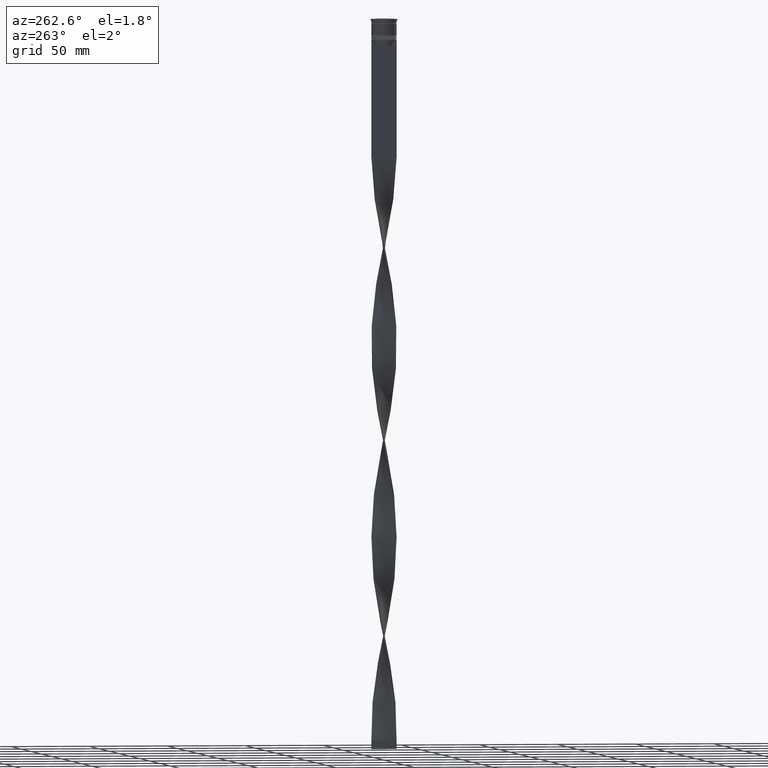
[diagram: clean part render]
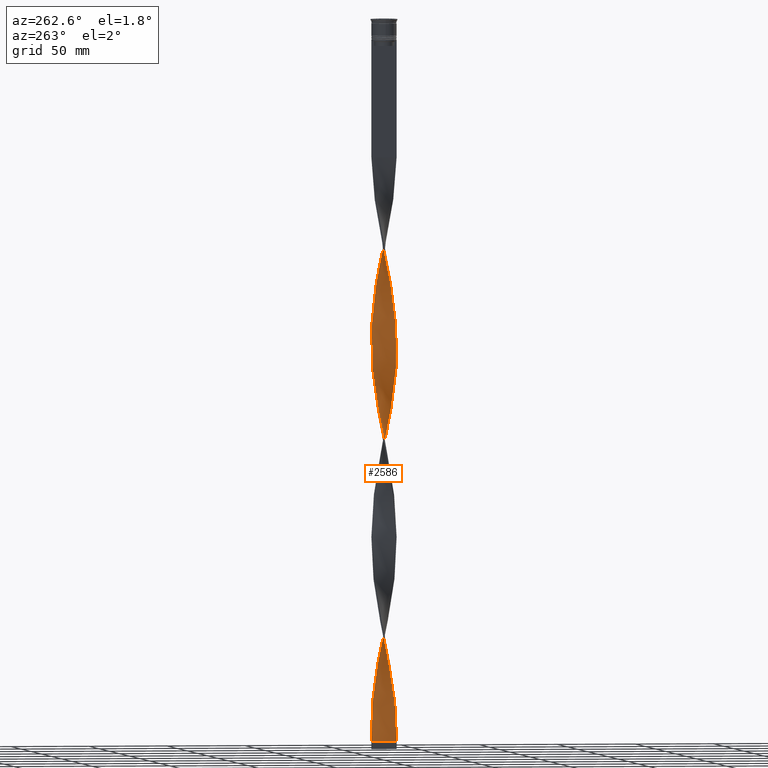
[diagram: same view with one face highlighted and labeled with its STEP entity id]
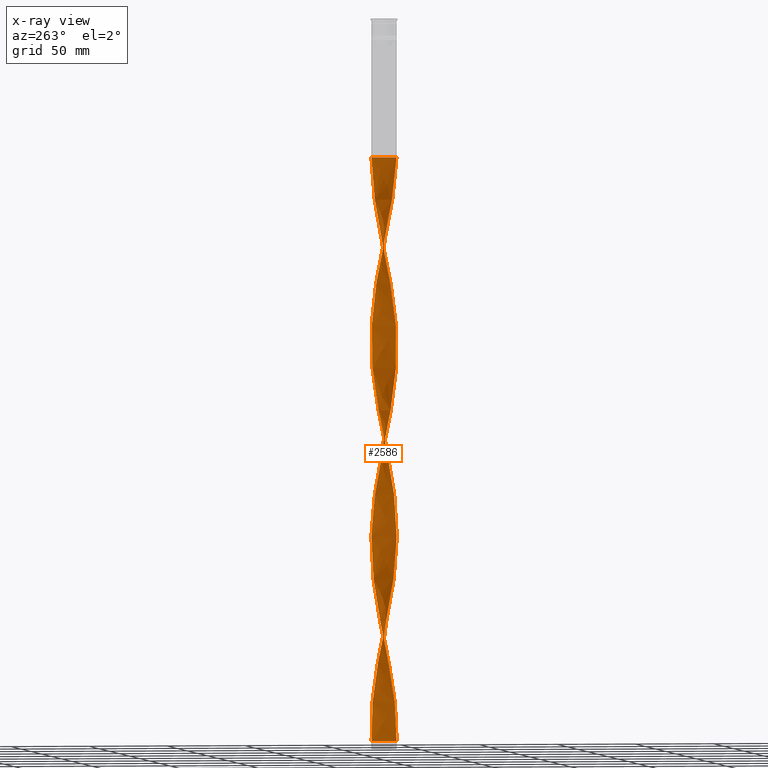
[diagram: x-ray of the same camera — body ghosted, the highlighted face saturated]
A machine part, auxiliary view. The second image highlights one B-rep face of the part: STEP entity #2586.
The next image is the same camera in x-ray: the body ghosted, the highlighted face saturated — about 0% of this face is hidden behind the body in this view.
In plain terms, the highlighted face is a freeform B-spline surface patch.
Its self-contained STEP definition (entity closure, byte-faithful):
#9 = CARTESIAN_POINT ( 'NONE',  ( 7.155170220385206115, 3.654333464282639277, -413.2971014492753739 ) ) ;
#11 = CARTESIAN_POINT ( 'NONE',  ( -5.106912555500773720, 6.202423566746443129, -364.9057971014491955 ) ) ;
#15 = CARTESIAN_POINT ( 'NONE',  ( -7.111726286817905418, -3.738176450121946104, -171.3405797101449366 ) ) ;
#27 = CARTESIAN_POINT ( 'NONE',  ( -3.244140533008806671, -7.350249393928927510, -316.5144927536232444 ) ) ;
#30 = CARTESIAN_POINT ( 'NONE',  ( -2.728603068017203537, 7.536890956966741939, -351.4637681159420595 ) ) ;
#34 = CARTESIAN_POINT ( 'NONE',  ( -3.157528285648548483, -7.387870401962426392, -198.2246376811594359 ) ) ;
#44 = CARTESIAN_POINT ( 'NONE',  ( 7.111726286817909859, -3.738176450121951433, -128.3260869565217206 ) ) ;
#52 = CARTESIAN_POINT ( 'NONE',  ( -6.247418983026107320, -5.021927523424158935, -297.6956521739130039 ) ) ;
#55 = CARTESIAN_POINT ( 'NONE',  ( 0.5000000000000001110, 7.999999999999996447, -88.00000000000000000 ) ) ;
#56 = CARTESIAN_POINT ( 'NONE',  ( -5.505411142615662001, 5.825843127888292727, -367.5942028985506909 ) ) ;
#59 = CARTESIAN_POINT ( 'NONE',  ( 0.5000000000000001110, 7.999999999999996447, -335.3333333333333144 ) ) ;
#67 = CARTESIAN_POINT ( 'NONE',  ( 5.106912555500779050, 6.202423566746448458, -182.0942028985507477 ) ) ;
#75 = CARTESIAN_POINT ( 'NONE',  ( 7.111726286817909859, -3.738176450121951433, -375.6594202898551771 ) ) ;
#78 = CARTESIAN_POINT ( 'NONE',  ( 7.875764468519586003, -1.588379043952506064, -268.1231884057971229 ) ) ;
#81 = CARTESIAN_POINT ( 'NONE',  ( -6.590928236321647482, 4.594592357818171990, -375.6594202898551771 ) ) ;
#87 = CARTESIAN_POINT ( 'NONE',  ( -3.157528285648548927, 7.387870401962434386, -225.1086956521739353 ) ) ;
#94 = CARTESIAN_POINT ( 'NONE',  ( 4.134100453396771790, -6.889109332278581910, -354.1521739130434980 ) ) ;
#97 = CARTESIAN_POINT ( 'NONE',  ( 5.839456248204607292, 5.518275516514853152, -305.7608695652173765 ) ) ;
#100 = CARTESIAN_POINT ( 'NONE',  ( -8.012249295248929926, -0.5953781837169673796, -402.5434782608696196 ) ) ;
#107 = CARTESIAN_POINT ( 'NONE',  ( -2.213065603025614170, -7.723532520004568802, -321.8913043478260647 ) ) ;
#133 = CARTESIAN_POINT ( 'NONE',  ( -4.134100453396770902, 6.889109332278581910, -230.4855072463767840 ) ) ;
#152 = CARTESIAN_POINT ( 'NONE',  ( -7.875764468519596662, -1.588379043952496961, -278.8768115942028771 ) ) ;
#171 = CARTESIAN_POINT ( 'NONE',  ( 4.583881302556714665, -6.575563261354194999, -356.8405797101449366 ) ) ;
#187 = CARTESIAN_POINT ( 'NONE',  ( -4.660847909256209398, 6.521234297798383928, -362.2173913043478137 ) ) ;
#196 = CARTESIAN_POINT ( 'NONE',  ( 0.04721499136463856022, 8.034200936960294470, -456.3115942028985614 ) ) ;
#209 = CARTESIAN_POINT ( 'NONE',  ( 2.122137340211640133, 7.749009424445332250, -327.2681159420290555 ) ) ;
#214 = CARTESIAN_POINT ( 'NONE',  ( 6.247418983026106432, 5.021927523424159823, -421.3623188405797464 ) ) ;
#227 = CARTESIAN_POINT ( 'NONE',  ( 6.824099305140972405, -4.204957630413717062, -125.6376811594202820 ) ) ;
#229 = CARTESIAN_POINT ( 'NONE',  ( -7.730944694932261996, 2.117190148262233063, -141.7681159420289703 ) ) ;
#233 = CARTESIAN_POINT ( 'NONE',  ( 7.705527183036060102, -2.207906436308480824, -383.7246376811593791 ) ) ;
#248 = CARTESIAN_POINT ( 'NONE',  ( -5.839456248204609956, 5.518275516514862034, -241.2391304347826519 ) ) ;
#253 = CARTESIAN_POINT ( 'NONE',  ( 5.505411142615662001, -5.825843127888292727, -243.9275362318840337 ) ) ;
#260 = CARTESIAN_POINT ( 'NONE',  ( 5.903909729730559164, 5.449262689030147655, -424.0507246376811281 ) ) ;
#275 = CARTESIAN_POINT ( 'NONE',  ( 8.018693425164372002, 0.5011683390727725840, -149.8333333333332860 ) ) ;
#279 = CARTESIAN_POINT ( 'NONE',  ( -3.244140533008799121, 7.350249393928923958, -106.8188405797101410 ) ) ;
#283 = CARTESIAN_POINT ( 'NONE',  ( -4.134100453396769126, -6.889109332278574804, -192.8478260869565020 ) ) ;
#295 = CARTESIAN_POINT ( 'NONE',  ( 7.370647570865075160, 3.150167358427300890, -163.2753623188405641 ) ) ;
#298 = CARTESIAN_POINT ( 'NONE',  ( -6.824099305140967076, -4.204957630413713510, -174.0289855072463752 ) ) ;
#302 = CARTESIAN_POINT ( 'NONE',  ( -0.5000000000000011102, -7.999999999999996447, -211.6666666666666572 ) ) ;
#310 = CARTESIAN_POINT ( 'NONE',  ( 8.015471360206651852, -0.04710492232209864683, -147.1449275362318758 ) ) ;
#317 = CARTESIAN_POINT ( 'NONE',  ( 4.214783263011651293, 6.840045028850328279, -187.4710144927535964 ) ) ;
#321 = CARTESIAN_POINT ( 'NONE',  ( -1.047214991364638470, -7.965799063039706418, -208.9782608695652186 ) ) ;
#325 = CARTESIAN_POINT ( 'NONE',  ( 6.536472323464030509, 4.671738810705480027, -300.3840579710144993 ) ) ;
#328 = VECTOR ( 'NONE', #856, 1000.000000000000000 ) ;
#334 = CARTESIAN_POINT ( 'NONE',  ( 6.590928236321653699, 4.594592357818171990, -171.3405797101449366 ) ) ;
#343 = CARTESIAN_POINT ( 'NONE',  ( 5.839456248204610844, -5.518275516514861145, -364.9057971014492523 ) ) ;
#345 = CARTESIAN_POINT ( 'NONE',  ( 8.018693425164364896, -0.5011683390727745824, -273.4999999999999432 ) ) ;
#347 = CARTESIAN_POINT ( 'NONE',  ( 7.155170220385198121, -3.654333464282639721, -257.3695652173913118 ) ) ;
#352 = CARTESIAN_POINT ( 'NONE',  ( 7.705527183036060102, -2.207906436308480824, -136.3913043478260931 ) ) ;
#360 = CARTESIAN_POINT ( 'NONE',  ( 6.873049228353429463, 4.124462911050406078, -415.9855072463768124 ) ) ;
#363 = CARTESIAN_POINT ( 'NONE',  ( -1.140765448138977955, 7.952940848717247491, -343.3985507246376869 ) ) ;
#365 = CARTESIAN_POINT ( 'NONE',  ( -7.934400707984895718, -1.138106060579906709, -157.8985507246376585 ) ) ;
#371 = CARTESIAN_POINT ( 'NONE',  ( 7.554502245351252476, -2.734978935174111836, -133.7028985507246546 ) ) ;
#377 = CARTESIAN_POINT ( 'NONE',  ( 6.824099305140972405, -4.204957630413717062, -372.9710144927536248 ) ) ;
#380 = CARTESIAN_POINT ( 'NONE',  ( 7.554502245351247147, 2.734978935174108727, -289.6304347826086882 ) ) ;
#387 = CARTESIAN_POINT ( 'NONE',  ( -0.5000000000000011102, -7.999999999999996447, -458.9999999999999432 ) ) ;
#398 = ORIENTED_EDGE ( 'NONE', *, *, #4286, .F. ) ;
#402 = CARTESIAN_POINT ( 'NONE',  ( -7.370647570865075160, -3.150167358427300002, -286.9420289855072497 ) ) ;
#407 = CARTESIAN_POINT ( 'NONE',  ( 3.157528285648549371, 7.387870401962426392, -321.8913043478260647 ) ) ;
#411 = CARTESIAN_POINT ( 'NONE',  ( -5.903909729730553835, 5.449262689030142326, -370.2826086956521863 ) ) ;
#418 = CARTESIAN_POINT ( 'NONE',  ( -3.729461898010225873, -7.095147211389629227, -313.8260869565216922 ) ) ;
#426 = CARTESIAN_POINT ( 'NONE',  ( 7.730944694932269989, 2.117190148262231286, -405.2318840579709445 ) ) ;
#429 = CARTESIAN_POINT ( 'NONE',  ( 4.134100453396772679, 6.889109332278572140, -316.5144927536231876 ) ) ;
#433 = CARTESIAN_POINT ( 'NONE',  ( -7.730944694932261996, 2.117190148262233063, -389.1014492753622562 ) ) ;
#437 = CARTESIAN_POINT ( 'NONE',  ( -0.5939902197518127647, -7.993570892838771869, -329.9565217391304373 ) ) ;
#451 = CARTESIAN_POINT ( 'NONE',  ( -3.729461898010222320, 7.095147211389622122, -356.8405797101449366 ) ) ;
#456 = CARTESIAN_POINT ( 'NONE',  ( -4.214783263011653069, -6.840045028850328279, -311.1376811594203673 ) ) ;
#465 =( BOUNDED_SURFACE ( )  B_SPLINE_SURFACE ( 1, 2, ( 
 ( #3208, #2921, #1541, #4212, #2894, #2220, #2568, #3556, #584, #1893, #2238, #1261, #2260, #606, #1940, #3272, #4176, #1178, #2507, #851, #3337, #1326, #1962, #3292, #2609, #2658, #365, #3997, #1368, #3008, #2675, #15, #960, #4040, #1606, #3356, #1694, #1651, #2287, #283, #1983, #34, #3028, #979, #4016, #4279, #302, #1626, #3669, #2942, #3951, #4303, #2006, #2699, #1347, #3647, #1042, #2375, #630, #1674, #1282, #2962, #1304, #347, #1018, #999, #3715, #2639, #717, #2049, #3977, #2353, #3626, #2308, #3695, #648, #2329, #695, #3315, #325, #2990, #2027, #4324, #672, #530, #3858, #2847, #4062, #2867, #209, #3524, #1065, #59, #2425, #1436, #2399, #1413, #862, #3767, #4082, #451, #1091, #187, #763, #2516, #411, #2093, #81, #2189, #3738, #3422, #883, #433, #4188, #3122, #1189, #2114, #100, #739, #2071, #1393, #2764, #1868, #4109, #1536, #1784, #1513, #3202, #3404, #4206, #3441, #2722, #1208, #2535, #1742, #3878, #1763, #3376, #387 ),
 ( #3076, #1720, #1117, #3055, #2446, #3096, #2741, #3787, #785, #1579, #1320, #929, #4227, #2583, #227, #1908, #1977, #2212, #1928, #3265, #3902, #906, #1554, #275, #2301, #1601, #3308, #623, #295, #1953, #2884, #1642, #2277, #1230, #972, #952, #3570, #317, #2253, #3970, #1619, #3285, #2934, #1275, #2983, #2560, #2630, #4272, #2954, #2602, #4253, #2232, #578, #3241, #2913, #2652, #3592, #248, #3923, #1256, #597, #4319, #3548, #3943, #557, #3639, #643, #3618, #4294, #1888, #1297, #3991, #3221, #1689, #402, #664, #1011, #2345, #52, #3661, #3331, #690, #2716, #2085, #731, #27, #4075, #2413, #1340, #2391, #1997, #2669, #4010, #4057, #3730, #3369, #1757, #3688, #753, #94, #2023, #1736, #3090, #343, #3070, #3351, #377, #75, #1081, #1360, #1427, #1407, #1670, #1709, #3757, #2735, #3416, #3003, #426, #2754, #992, #9, #360, #2690, #3045, #3022, #4032, #2323, #1036, #2370, #2062, #3710, #3392, #710, #2042, #1387, #1059, #797, #3174 ) ),
 .UNSPECIFIED., .F., .F., .F. ) 
 B_SPLINE_SURFACE_WITH_KNOTS ( ( 2, 2 ),
 ( 3, 2, 2, 2, 2, 2, 2, 2, 2, 2, 2, 2, 2, 2, 2, 2, 2, 2, 2, 2, 2, 2, 2, 2, 2, 2, 2, 2, 2, 2, 2, 2, 2, 2, 2, 2, 2, 2, 2, 2, 2, 2, 2, 2, 2, 2, 2, 2, 2, 2, 2, 2, 2, 2, 2, 2, 2, 2, 2, 2, 2, 2, 2, 2, 2, 2, 2, 2, 2, 3 ),
 ( 0.000000000000000000, 1.000000000000000000 ),
 ( 0.000000000000000000, 0.01086956521739130405, 0.02173913043478260809, 0.03260869565217391214, 0.04347826086956521618, 0.05434782608695652023, 0.06521739130434782428, 0.07608695652173913526, 0.08695652173913043237, 0.09782608695652174335, 0.1086956521739130405, 0.1195652173913043514, 0.1304347826086956486, 0.1413043478260869457, 0.1521739130434782705, 0.1630434782608695676, 0.1739130434782608647, 0.1847826086956521618, 0.1956521739130434867, 0.2065217391304347838, 0.2173913043478260809, 0.2282608695652173780, 0.2391304347826087029, 0.2500000000000000000, 0.2608695652173912971, 0.2717391304347825942, 0.2826086956521738913, 0.2934782608695652439, 0.3043478260869565410, 0.3152173913043478382, 0.3260869565217391353, 0.3369565217391304324, 0.3478260869565217295, 0.3586956521739130266, 0.3695652173913043237, 0.3804347826086956763, 0.3913043478260869734, 0.4021739130434782705, 0.4130434782608695676, 0.4239130434782608647, 0.4347826086956521618, 0.4456521739130434590, 0.4565217391304347561, 0.4673913043478261087, 0.4782608695652174058, 0.4891304347826087029, 0.5000000000000000000, 0.5108695652173913526, 0.5217391304347825942, 0.5326086956521739468, 0.5434782608695651884, 0.5543478260869565410, 0.5652173913043477826, 0.5760869565217391353, 0.5869565217391304879, 0.5978260869565217295, 0.6086956521739130821, 0.6195652173913043237, 0.6304347826086956763, 0.6413043478260869179, 0.6521739130434782705, 0.6630434782608695121, 0.6739130434782608647, 0.6847826086956522174, 0.6956521739130434590, 0.7065217391304348116, 0.7173913043478260532, 0.7282608695652174058, 0.7391304347826086474, 0.7500000000000000000 ),
 .UNSPECIFIED. ) 
 GEOMETRIC_REPRESENTATION_ITEM ( )  RATIONAL_B_SPLINE_SURFACE ( (
 ( 1.000000000000000000, 0.9976687691905391508, 1.000000000000000000, 0.9976687691905391508, 1.000000000000000000, 0.9976687691905391508, 1.000000000000000000, 0.9976687691905391508, 1.000000000000000000, 0.9976687691905391508, 1.000000000000000000, 0.9976687691905391508, 1.000000000000000000, 0.9976687691905391508, 1.000000000000000000, 0.9976687691905391508, 1.000000000000000000, 0.9976687691905391508, 1.000000000000000000, 0.9976687691905391508, 1.000000000000000000, 0.9976687691905391508, 1.000000000000000000, 0.9976687691905391508, 1.000000000000000000, 0.9976687691905391508, 1.000000000000000000, 0.9976687691905391508, 1.000000000000000000, 0.9976687691905391508, 1.000000000000000000, 0.9976687691905391508, 1.000000000000000000, 0.9976687691905391508, 1.000000000000000000, 0.9976687691905391508, 1.000000000000000000, 0.9976687691905391508, 1.000000000000000000, 0.9976687691905391508, 1.000000000000000000, 0.9976687691905391508, 1.000000000000000000, 0.9976687691905391508, 1.000000000000000000, 0.9976687691905391508, 1.000000000000000000, 0.9976687691905391508, 1.000000000000000000, 0.9976687691905391508, 1.000000000000000000, 0.9976687691905391508, 1.000000000000000000, 0.9976687691905391508, 1.000000000000000000, 0.9976687691905391508, 1.000000000000000000, 0.9976687691905391508, 1.000000000000000000, 0.9976687691905391508, 1.000000000000000000, 0.9976687691905391508, 1.000000000000000000, 0.9976687691905391508, 1.000000000000000000, 0.9976687691905391508, 1.000000000000000000, 0.9976687691905391508, 1.000000000000000000, 0.9976687691905391508, 1.000000000000000000, 0.9976687691905391508, 1.000000000000000000, 0.9976687691905391508, 1.000000000000000000, 0.9976687691905391508, 1.000000000000000000, 0.9976687691905391508, 1.000000000000000000, 0.9976687691905391508, 1.000000000000000000, 0.9976687691905391508, 1.000000000000000000, 0.9976687691905391508, 1.000000000000000000, 0.9976687691905391508, 1.000000000000000000, 0.9976687691905391508, 1.000000000000000000, 0.9976687691905391508, 1.000000000000000000, 0.9976687691905391508, 1.000000000000000000, 0.9976687691905391508, 1.000000000000000000, 0.9976687691905391508, 1.000000000000000000, 0.9976687691905391508, 1.000000000000000000, 0.9976687691905391508, 1.000000000000000000, 0.9976687691905391508, 1.000000000000000000, 0.9976687691905391508, 1.000000000000000000, 0.9976687691905391508, 1.000000000000000000, 0.9976687691905391508, 1.000000000000000000, 0.9976687691905391508, 1.000000000000000000, 0.9976687691905391508, 1.000000000000000000, 0.9976687691905391508, 1.000000000000000000, 0.9976687691905391508, 1.000000000000000000, 0.9976687691905391508, 1.000000000000000000, 0.9976687691905391508, 1.000000000000000000, 0.9976687691905391508, 1.000000000000000000, 0.9976687691905391508, 1.000000000000000000, 0.9976687691905391508, 1.000000000000000000, 0.9976687691905391508, 1.000000000000000000, 0.9976687691905391508, 1.000000000000000000, 0.9976687691905391508, 1.000000000000000000, 0.9976687691905391508, 1.000000000000000000, 0.9976687691905391508, 1.000000000000000000, 0.9976687691905391508, 1.000000000000000000),
 ( 1.000000000000000000, 0.9976687691905391508, 1.000000000000000000, 0.9976687691905391508, 1.000000000000000000, 0.9976687691905391508, 1.000000000000000000, 0.9976687691905391508, 1.000000000000000000, 0.9976687691905391508, 1.000000000000000000, 0.9976687691905391508, 1.000000000000000000, 0.9976687691905391508, 1.000000000000000000, 0.9976687691905391508, 1.000000000000000000, 0.9976687691905391508, 1.000000000000000000, 0.9976687691905391508, 1.000000000000000000, 0.9976687691905391508, 1.000000000000000000, 0.9976687691905391508, 1.000000000000000000, 0.9976687691905391508, 1.000000000000000000, 0.9976687691905391508, 1.000000000000000000, 0.9976687691905391508, 1.000000000000000000, 0.9976687691905391508, 1.000000000000000000, 0.9976687691905391508, 1.000000000000000000, 0.9976687691905391508, 1.000000000000000000, 0.9976687691905391508, 1.000000000000000000, 0.9976687691905391508, 1.000000000000000000, 0.9976687691905391508, 1.000000000000000000, 0.9976687691905391508, 1.000000000000000000, 0.9976687691905391508, 1.000000000000000000, 0.9976687691905391508, 1.000000000000000000, 0.9976687691905391508, 1.000000000000000000, 0.9976687691905391508, 1.000000000000000000, 0.9976687691905391508, 1.000000000000000000, 0.9976687691905391508, 1.000000000000000000, 0.9976687691905391508, 1.000000000000000000, 0.9976687691905391508, 1.000000000000000000, 0.9976687691905391508, 1.000000000000000000, 0.9976687691905391508, 1.000000000000000000, 0.9976687691905391508, 1.000000000000000000, 0.9976687691905391508, 1.000000000000000000, 0.9976687691905391508, 1.000000000000000000, 0.9976687691905391508, 1.000000000000000000, 0.9976687691905391508, 1.000000000000000000, 0.9976687691905391508, 1.000000000000000000, 0.9976687691905391508, 1.000000000000000000, 0.9976687691905391508, 1.000000000000000000, 0.9976687691905391508, 1.000000000000000000, 0.9976687691905391508, 1.000000000000000000, 0.9976687691905391508, 1.000000000000000000, 0.9976687691905391508, 1.000000000000000000, 0.9976687691905391508, 1.000000000000000000, 0.9976687691905391508, 1.000000000000000000, 0.9976687691905391508, 1.000000000000000000, 0.9976687691905391508, 1.000000000000000000, 0.9976687691905391508, 1.000000000000000000, 0.9976687691905391508, 1.000000000000000000, 0.9976687691905391508, 1.000000000000000000, 0.9976687691905391508, 1.000000000000000000, 0.9976687691905391508, 1.000000000000000000, 0.9976687691905391508, 1.000000000000000000, 0.9976687691905391508, 1.000000000000000000, 0.9976687691905391508, 1.000000000000000000, 0.9976687691905391508, 1.000000000000000000, 0.9976687691905391508, 1.000000000000000000, 0.9976687691905391508, 1.000000000000000000, 0.9976687691905391508, 1.000000000000000000, 0.9976687691905391508, 1.000000000000000000, 0.9976687691905391508, 1.000000000000000000, 0.9976687691905391508, 1.000000000000000000, 0.9976687691905391508, 1.000000000000000000, 0.9976687691905391508, 1.000000000000000000, 0.9976687691905391508, 1.000000000000000000, 0.9976687691905391508, 1.000000000000000000, 0.9976687691905391508, 1.000000000000000000, 0.9976687691905391508, 1.000000000000000000) ) ) 
 REPRESENTATION_ITEM ( '' )  SURFACE ( )  );
#481 = CARTESIAN_POINT ( 'NONE',  ( -8.018693425164370225, -0.5011683390727715848, -273.4999999999999432 ) ) ;
#498 = CARTESIAN_POINT ( 'NONE',  ( 6.536472323464036727, -4.671738810705485356, -370.2826086956521863 ) ) ;
#530 = CARTESIAN_POINT ( 'NONE',  ( 4.583881302556711113, 6.575563261354189670, -313.8260869565216922 ) ) ;
#543 = CARTESIAN_POINT ( 'NONE',  ( 0.5939902197518082128, 7.993570892838771869, -453.6231884057970660 ) ) ;
#557 = CARTESIAN_POINT ( 'NONE',  ( -7.705527183036060102, 2.207906436308481712, -260.0579710144927503 ) ) ;
#564 = CARTESIAN_POINT ( 'NONE',  ( 4.214783263011652181, 6.840045028850328279, -434.8043478260869392 ) ) ;
#578 = CARTESIAN_POINT ( 'NONE',  ( -3.645814369522657472, 7.138489867120507704, -227.7971014492753454 ) ) ;
#580 = CARTESIAN_POINT ( 'NONE',  ( -6.536472323464030509, -4.671738810705480915, -176.7173913043478137 ) ) ;
#584 = CARTESIAN_POINT ( 'NONE',  ( -3.729461898010222320, 7.095147211389622122, -109.5072463768115796 ) ) ;
#597 = CARTESIAN_POINT ( 'NONE',  ( -6.824099305140972405, 4.204957630413717951, -249.3043478260869392 ) ) ;
#601 = CARTESIAN_POINT ( 'NONE',  ( -7.934400707984895718, -1.138106060579906709, -157.8985507246376585 ) ) ;
#606 = CARTESIAN_POINT ( 'NONE',  ( -5.903909729730553835, 5.449262689030142326, -122.9492753623188577 ) ) ;
#623 = CARTESIAN_POINT ( 'NONE',  ( 7.586124921344944205, 2.646001252571962059, -160.5869565217391823 ) ) ;
#626 = CARTESIAN_POINT ( 'NONE',  ( -2.213065603025609285, 7.723532520004562585, -101.4420289855072497 ) ) ;
#630 = CARTESIAN_POINT ( 'NONE',  ( 5.505411142615662001, -5.825843127888292727, -243.9275362318840337 ) ) ;
#637 = CARTESIAN_POINT ( 'NONE',  ( 4.214783263011652181, 6.840045028850328279, -187.4710144927535964 ) ) ;
#643 = CARTESIAN_POINT ( 'NONE',  ( -7.934400707984902823, 1.138106060579908485, -265.4347826086956275 ) ) ;
#646 = CARTESIAN_POINT ( 'NONE',  ( -1.584676165788138080, -7.857404243742519334, -206.2898550724637516 ) ) ;
#648 = CARTESIAN_POINT ( 'NONE',  ( 7.554502245351248035, 2.734978935174108727, -289.6304347826086882 ) ) ;
#656 = CARTESIAN_POINT ( 'NONE',  ( 6.824099305140972405, -4.204957630413717062, -125.6376811594202820 ) ) ;
#664 = CARTESIAN_POINT ( 'NONE',  ( -7.155170220385206115, -3.654333464282639721, -289.6304347826086882 ) ) ;
#668 = CARTESIAN_POINT ( 'NONE',  ( -2.728603068017203537, 7.536890956966741939, -104.1304347826086882 ) ) ;
#672 = CARTESIAN_POINT ( 'NONE',  ( 5.033662151716655764, 6.262017190429801872, -311.1376811594204241 ) ) ;
#681 = CARTESIAN_POINT ( 'NONE',  ( 7.333114266084581168, -3.236577692648031412, -131.0144927536231876 ) ) ;
#690 = CARTESIAN_POINT ( 'NONE',  ( -5.106912555500783490, -6.202423566746444905, -305.7608695652173196 ) ) ;
#692 = CARTESIAN_POINT ( 'NONE',  ( 6.824099305140967964, 4.204957630413712621, -297.6956521739130039 ) ) ;
#695 = CARTESIAN_POINT ( 'NONE',  ( 7.111726286817906306, 3.738176450121945660, -295.0072463768116791 ) ) ;
#702 = CARTESIAN_POINT ( 'NONE',  ( 5.436559199960634636, -5.890146353472335505, -114.8840579710144851 ) ) ;
#710 = CARTESIAN_POINT ( 'NONE',  ( 2.213065603025613282, 7.723532520004568802, -445.5579710144927503 ) ) ;
#714 = CARTESIAN_POINT ( 'NONE',  ( -6.536472323464030509, -4.671738810705480915, -424.0507246376811281 ) ) ;
#717 = CARTESIAN_POINT ( 'NONE',  ( 7.947228946841973674, -1.044773691512640212, -270.8115942028985614 ) ) ;
#723 = CARTESIAN_POINT ( 'NONE',  ( 3.645814369522659693, -7.138489867120506815, -104.1304347826086882 ) ) ;
#731 = CARTESIAN_POINT ( 'NONE',  ( -3.729461898010225873, -7.095147211389629227, -313.8260869565216922 ) ) ;
#733 = CARTESIAN_POINT ( 'NONE',  ( 1.047214991364639358, 7.965799063039706418, -332.6449275362318758 ) ) ;
#739 = CARTESIAN_POINT ( 'NONE',  ( -7.934400707984895718, -1.138106060579906709, -405.2318840579709445 ) ) ;
#745 = CARTESIAN_POINT ( 'NONE',  ( -6.873049228353431239, -4.124462911050402525, -292.3188405797101268 ) ) ;
#753 = CARTESIAN_POINT ( 'NONE',  ( 3.645814369522659693, -7.138489867120506815, -351.4637681159420595 ) ) ;
#759 = CARTESIAN_POINT ( 'NONE',  ( -7.155170220385199009, 3.654333464282637500, -381.0362318840579974 ) ) ;
#763 = CARTESIAN_POINT ( 'NONE',  ( -5.106912555500773720, 6.202423566746443129, -364.9057971014492523 ) ) ;
#769 = CARTESIAN_POINT ( 'NONE',  ( -3.244140533008806671, -7.350249393928927510, -316.5144927536231876 ) ) ;
#780 = CARTESIAN_POINT ( 'NONE',  ( -7.586124921344937100, 2.646001252571962947, -386.4130434782609314 ) ) ;
#785 = CARTESIAN_POINT ( 'NONE',  ( 4.583881302556714665, -6.575563261354194999, -109.5072463768115796 ) ) ;
#789 = CARTESIAN_POINT ( 'NONE',  ( -5.033662151716658428, 6.262017190429809865, -235.8623188405797464 ) ) ;
#797 = CARTESIAN_POINT ( 'NONE',  ( 0.04721499136463855328, 8.034200936960292694, -456.3115942028985614 ) ) ;
#813 = CARTESIAN_POINT ( 'NONE',  ( -0.04721499136463953861, -8.034200936960294470, -332.6449275362318758 ) ) ;
#825 = CARTESIAN_POINT ( 'NONE',  ( -3.157528285648548483, -7.387870401962426392, -445.5579710144927503 ) ) ;
#836 = CARTESIAN_POINT ( 'NONE',  ( 6.187964285834322453, -5.095007163610173251, -367.5942028985506909 ) ) ;
#851 = CARTESIAN_POINT ( 'NONE',  ( -7.586124921344937100, 2.646001252571962947, -139.0797101449275317 ) ) ;
#856 = DIRECTION ( 'NONE',  ( 0.000000000000000000, 1.000000000000000000, 0.000000000000000000 ) ) ;
#862 = CARTESIAN_POINT ( 'NONE',  ( -2.213065603025609729, 7.723532520004563473, -348.7753623188405072 ) ) ;
#883 = CARTESIAN_POINT ( 'NONE',  ( -7.586124921344937100, 2.646001252571962947, -386.4130434782609882 ) ) ;
#895 = CARTESIAN_POINT ( 'NONE',  ( 4.660847909256216504, 6.521234297798387480, -432.1159420289855007 ) ) ;
#906 = CARTESIAN_POINT ( 'NONE',  ( 8.012249295248937031, -0.5953781837169696001, -144.4565217391304657 ) ) ;
#908 = CARTESIAN_POINT ( 'NONE',  ( -8.018693425164364896, 0.5011683390727735832, -149.8333333333333144 ) ) ;
#914 = CARTESIAN_POINT ( 'NONE',  ( 5.505411142615669107, 5.825843127888296280, -426.7391304347826235 ) ) ;
#929 = CARTESIAN_POINT ( 'NONE',  ( 5.839456248204610844, -5.518275516514861145, -117.5724637681159379 ) ) ;
#931 = CARTESIAN_POINT ( 'NONE',  ( 3.244140533008798233, -7.350249393928924846, -230.4855072463767840 ) ) ;
#952 = CARTESIAN_POINT ( 'NONE',  ( 5.106912555500779050, 6.202423566746448458, -182.0942028985507477 ) ) ;
#956 = CARTESIAN_POINT ( 'NONE',  ( -4.214783263011645964, 6.840045028850323838, -112.1956521739130466 ) ) ;
#960 = CARTESIAN_POINT ( 'NONE',  ( -6.824099305140967076, -4.204957630413713510, -174.0289855072463752 ) ) ;
#967 = CARTESIAN_POINT ( 'NONE',  ( 7.370647570865075160, 3.150167358427300890, -163.2753623188405641 ) ) ;
#972 = CARTESIAN_POINT ( 'NONE',  ( 5.505411142615669107, 5.825843127888296280, -179.4057971014492807 ) ) ;
#975 = CARTESIAN_POINT ( 'NONE',  ( -3.645814369522659248, -7.138489867120498822, -195.5362318840579405 ) ) ;
#979 = CARTESIAN_POINT ( 'NONE',  ( -2.122137340211642353, -7.749009424445332250, -203.6014492753623415 ) ) ;
#992 = CARTESIAN_POINT ( 'NONE',  ( 7.370647570865075160, 3.150167358427300890, -410.6086956521738216 ) ) ;
#996 = CARTESIAN_POINT ( 'NONE',  ( 7.155170220385198121, -3.654333464282639721, -257.3695652173913118 ) ) ;
#999 = CARTESIAN_POINT ( 'NONE',  ( 7.586124921344937100, -2.646001252571961615, -262.7463768115941889 ) ) ;
#1011 = CARTESIAN_POINT ( 'NONE',  ( -6.873049228353431239, -4.124462911050402525, -292.3188405797101268 ) ) ;
#1014 = CARTESIAN_POINT ( 'NONE',  ( 8.015471360206644746, 0.04710492232209789049, -276.1884057971014386 ) ) ;
#1018 = CARTESIAN_POINT ( 'NONE',  ( 7.370647570865066278, -3.150167358427300446, -260.0579710144927503 ) ) ;
#1036 = CARTESIAN_POINT ( 'NONE',  ( 4.660847909256216504, 6.521234297798387480, -432.1159420289855007 ) ) ;
#1040 = CARTESIAN_POINT ( 'NONE',  ( -5.436559199960631972, -5.890146353472328400, -432.1159420289855007 ) ) ;
#1042 = CARTESIAN_POINT ( 'NONE',  ( 4.660847909256209398, -6.521234297798382151, -238.5507246376811565 ) ) ;
#1059 = CARTESIAN_POINT ( 'NONE',  ( 0.5939902197518082128, 7.993570892838771869, -453.6231884057970660 ) ) ;
#1062 = CARTESIAN_POINT ( 'NONE',  ( -7.554502245351247147, -2.734978935174108283, -413.2971014492753739 ) ) ;
#1065 = CARTESIAN_POINT ( 'NONE',  ( 1.047214991364639358, 7.965799063039706418, -332.6449275362318758 ) ) ;
#1072 = CARTESIAN_POINT ( 'NONE',  ( -2.639832812930093198, 7.568439913203886427, -222.4202898550724399 ) ) ;
#1081 = CARTESIAN_POINT ( 'NONE',  ( 7.333114266084581168, -3.236577692648031412, -378.3478260869565020 ) ) ;
#1087 = CARTESIAN_POINT ( 'NONE',  ( 0.5000000000000001110, 7.999999999999996447, -335.3333333333333144 ) ) ;
#1091 = CARTESIAN_POINT ( 'NONE',  ( -4.214783263011645076, 6.840045028850322950, -359.5289855072463752 ) ) ;
#1098 = CARTESIAN_POINT ( 'NONE',  ( -6.247418983026107320, -5.021927523424158935, -297.6956521739130039 ) ) ;
#1113 = CARTESIAN_POINT ( 'NONE',  ( -3.729461898010222320, 7.095147211389622122, -356.8405797101449366 ) ) ;
#1117 = CARTESIAN_POINT ( 'NONE',  ( 1.584676165788138524, -7.857404243742526440, -93.37681159420290555 ) ) ;
#1121 = CARTESIAN_POINT ( 'NONE',  ( 2.122137340211641465, -7.749009424445339356, -343.3985507246376869 ) ) ;
#1142 = CARTESIAN_POINT ( 'NONE',  ( -4.583881302556712001, 6.575563261354197664, -233.1739130434782510 ) ) ;
#1149 = CARTESIAN_POINT ( 'NONE',  ( -1.047214991364638470, -7.965799063039706418, -456.3115942028985614 ) ) ;
#1158 = CARTESIAN_POINT ( 'NONE',  ( -2.728603068017210198, -7.536890956966746380, -319.2028985507245693 ) ) ;
#1178 = CARTESIAN_POINT ( 'NONE',  ( -7.155170220385199009, 3.654333464282637500, -133.7028985507246546 ) ) ;
#1186 = CARTESIAN_POINT ( 'NONE',  ( -4.134100453396769126, -6.889109332278574804, -440.1811594202898164 ) ) ;
#1189 = CARTESIAN_POINT ( 'NONE',  ( -8.018693425164364896, 0.5011683390727736942, -397.1666666666666288 ) ) ;
#1196 = CARTESIAN_POINT ( 'NONE',  ( 7.934400707984902823, -1.138106060579910928, -389.1014492753622562 ) ) ;
#1208 = CARTESIAN_POINT ( 'NONE',  ( -3.645814369522659248, -7.138489867120498822, -442.8695652173913118 ) ) ;
#1230 = CARTESIAN_POINT ( 'NONE',  ( 5.903909729730560052, 5.449262689030147655, -176.7173913043478137 ) ) ;
#1234 = CARTESIAN_POINT ( 'NONE',  ( -4.660847909256209398, 6.521234297798383928, -114.8840579710144851 ) ) ;
#1242 = CARTESIAN_POINT ( 'NONE',  ( 1.676915525582295619, 7.838236684360910367, -448.2463768115941889 ) ) ;
#1256 = CARTESIAN_POINT ( 'NONE',  ( -6.536472323464034062, 4.671738810705488021, -246.6159420289854722 ) ) ;
#1258 = CARTESIAN_POINT ( 'NONE',  ( -7.370647570865066278, 3.150167358427299558, -136.3913043478260931 ) ) ;
#1261 = CARTESIAN_POINT ( 'NONE',  ( -5.106912555500773720, 6.202423566746443129, -117.5724637681159379 ) ) ;
#1275 = CARTESIAN_POINT ( 'NONE',  ( 1.140765448138981286, 7.952940848717255484, -203.6014492753623415 ) ) ;
#1278 = CARTESIAN_POINT ( 'NONE',  ( -0.5000000000000011102, -7.999999999999996447, -211.6666666666666572 ) ) ;
#1282 = CARTESIAN_POINT ( 'NONE',  ( 6.247418983026099326, -5.021927523424157158, -249.3043478260869392 ) ) ;
#1295 = CARTESIAN_POINT ( 'NONE',  ( -0.5000000000000004441, -2.666666666666663410, -458.9999999999999432 ) ) ;
#1297 = CARTESIAN_POINT ( 'NONE',  ( -7.947228946841980779, -1.044773691512637548, -276.1884057971014386 ) ) ;
#1301 = CARTESIAN_POINT ( 'NONE',  ( -7.554502245351247147, -2.734978935174108283, -165.9637681159420595 ) ) ;
#1304 = CARTESIAN_POINT ( 'NONE',  ( 6.873049228353421469, -4.124462911050407854, -254.6811594202898448 ) ) ;
#1320 = CARTESIAN_POINT ( 'NONE',  ( 5.436559199960634636, -5.890146353472335505, -114.8840579710144851 ) ) ;
#1324 = CARTESIAN_POINT ( 'NONE',  ( -5.033662151716655764, -6.262017190429802760, -187.4710144927535964 ) ) ;
#1326 = CARTESIAN_POINT ( 'NONE',  ( -7.875764468519589556, 1.588379043952501624, -144.4565217391304657 ) ) ;
#1333 = CARTESIAN_POINT ( 'NONE',  ( 7.875764468519596662, 1.588379043952501402, -155.2101449275362199 ) ) ;
#1340 = CARTESIAN_POINT ( 'NONE',  ( -1.676915525582296285, -7.838236684360910367, -324.5797101449275033 ) ) ;
#1342 = CARTESIAN_POINT ( 'NONE',  ( -7.875764468519589556, 1.588379043952501846, -391.7898550724637516 ) ) ;
#1347 = CARTESIAN_POINT ( 'NONE',  ( 3.729461898010220100, -7.095147211389623898, -233.1739130434782510 ) ) ;
#1360 = CARTESIAN_POINT ( 'NONE',  ( 7.554502245351253364, -2.734978935174111836, -381.0362318840579974 ) ) ;
#1364 = CARTESIAN_POINT ( 'NONE',  ( -7.111726286817906306, -3.738176450121946548, -418.6739130434783078 ) ) ;
#1368 = CARTESIAN_POINT ( 'NONE',  ( -7.705527183036053884, -2.207906436308477716, -163.2753623188405641 ) ) ;
#1379 = CARTESIAN_POINT ( 'NONE',  ( 4.583881302556714665, -6.575563261354194999, -109.5072463768115796 ) ) ;
#1387 = CARTESIAN_POINT ( 'NONE',  ( 1.140765448138981286, 7.952940848717255484, -450.9347826086956275 ) ) ;
#1390 = CARTESIAN_POINT ( 'NONE',  ( -0.04721499136463552099, 8.034200936960287365, -338.0217391304347530 ) ) ;
#1393 = CARTESIAN_POINT ( 'NONE',  ( -7.705527183036053884, -2.207906436308477716, -410.6086956521738216 ) ) ;
#1399 = CARTESIAN_POINT ( 'NONE',  ( 4.660847909256216504, 6.521234297798387480, -184.7826086956521578 ) ) ;
#1407 = CARTESIAN_POINT ( 'NONE',  ( 7.856552120720867727, -1.680833937442850701, -386.4130434782609882 ) ) ;
#1410 = CARTESIAN_POINT ( 'NONE',  ( 7.947228946841973674, -1.044773691512640212, -270.8115942028985614 ) ) ;
#1413 = CARTESIAN_POINT ( 'NONE',  ( -1.676915525582293620, 7.838236684360903261, -346.0869565217391255 ) ) ;
#1420 = CARTESIAN_POINT ( 'NONE',  ( -3.645814369522657472, 7.138489867120507704, -227.7971014492753454 ) ) ;
#1427 = CARTESIAN_POINT ( 'NONE',  ( 7.705527183036060102, -2.207906436308480824, -383.7246376811593791 ) ) ;
#1431 = CARTESIAN_POINT ( 'NONE',  ( -5.839456248204605515, -5.518275516514856704, -429.4275362318840621 ) ) ;
#1436 = CARTESIAN_POINT ( 'NONE',  ( -0.5939902197518068805, 7.993570892838764763, -340.7101449275362484 ) ) ;
#1442 = CARTESIAN_POINT ( 'NONE',  ( -7.370647570865075160, -3.150167358427300002, -286.9420289855072497 ) ) ;
#1465 = CARTESIAN_POINT ( 'NONE',  ( -5.505411142615672659, -5.825843127888293616, -303.0724637681159379 ) ) ;
#1482 = CARTESIAN_POINT ( 'NONE',  ( -0.4999999999999991673, 8.000000000000003553, -211.6666666666666572 ) ) ;
#1513 = CARTESIAN_POINT ( 'NONE',  ( -6.187964285834318900, -5.095007163610166145, -426.7391304347826235 ) ) ;
#1521 = CARTESIAN_POINT ( 'NONE',  ( 7.370647570865075160, 3.150167358427300890, -410.6086956521738216 ) ) ;
#1536 = CARTESIAN_POINT ( 'NONE',  ( -6.824099305140967076, -4.204957630413713510, -421.3623188405797464 ) ) ;
#1541 = CARTESIAN_POINT ( 'NONE',  ( -0.5939902197518068805, 7.993570892838764763, -93.37681159420290555 ) ) ;
#1554 = CARTESIAN_POINT ( 'NONE',  ( 8.015471360206651852, -0.04710492232209864683, -147.1449275362318758 ) ) ;
#1557 = CARTESIAN_POINT ( 'NONE',  ( -3.729461898010222320, 7.095147211389622122, -109.5072463768115796 ) ) ;
#1563 = CARTESIAN_POINT ( 'NONE',  ( 7.155170220385206115, 3.654333464282639277, -413.2971014492753739 ) ) ;
#1579 = CARTESIAN_POINT ( 'NONE',  ( 5.033662151716659316, -6.262017190429809865, -112.1956521739130466 ) ) ;
#1584 = CARTESIAN_POINT ( 'NONE',  ( -1.140765448138977955, 7.952940848717247491, -96.06521739130434412 ) ) ;
#1601 = CARTESIAN_POINT ( 'NONE',  ( 7.875764468519596662, 1.588379043952501180, -155.2101449275362199 ) ) ;
#1603 = CARTESIAN_POINT ( 'NONE',  ( -5.505411142615662001, 5.825843127888292727, -120.2608695652173907 ) ) ;
#1606 = CARTESIAN_POINT ( 'NONE',  ( -6.187964285834318900, -5.095007163610166145, -179.4057971014492807 ) ) ;
#1619 = CARTESIAN_POINT ( 'NONE',  ( 2.728603068017209310, 7.536890956966746380, -195.5362318840579405 ) ) ;
#1622 = CARTESIAN_POINT ( 'NONE',  ( -6.590928236321647482, 4.594592357818171990, -128.3260869565217206 ) ) ;
#1626 = CARTESIAN_POINT ( 'NONE',  ( 0.04721499136463248175, -8.034200936960285588, -214.3550724637681242 ) ) ;
#1633 = CARTESIAN_POINT ( 'NONE',  ( 6.247418983026106432, 5.021927523424159823, -174.0289855072463752 ) ) ;
#1642 = CARTESIAN_POINT ( 'NONE',  ( 6.590928236321653699, 4.594592357818172879, -171.3405797101449366 ) ) ;
#1647 = CARTESIAN_POINT ( 'NONE',  ( 0.04721499136463248869, -8.034200936960287365, -214.3550724637681242 ) ) ;
#1651 = CARTESIAN_POINT ( 'NONE',  ( -5.033662151716655764, -6.262017190429802760, -187.4710144927535964 ) ) ;
#1661 = CARTESIAN_POINT ( 'NONE',  ( 7.856552120720868615, -1.680833937442850923, -139.0797101449275317 ) ) ;
#1670 = CARTESIAN_POINT ( 'NONE',  ( 7.934400707984902823, -1.138106060579910928, -389.1014492753622562 ) ) ;
#1672 = CARTESIAN_POINT ( 'NONE',  ( 2.639832812930094086, 7.568439913203878433, -324.5797101449275033 ) ) ;
#1674 = CARTESIAN_POINT ( 'NONE',  ( 5.903909729730552058, -5.449262689030144102, -246.6159420289854722 ) ) ;
#1680 = CARTESIAN_POINT ( 'NONE',  ( 2.213065603025613282, 7.723532520004568802, -198.2246376811594359 ) ) ;
#1689 = CARTESIAN_POINT ( 'NONE',  ( -7.586124921344944205, -2.646001252571961171, -284.2536231884058111 ) ) ;
#1691 = CARTESIAN_POINT ( 'NONE',  ( 7.705527183036053884, 2.207906436308476827, -286.9420289855072497 ) ) ;
#1694 = CARTESIAN_POINT ( 'NONE',  ( -5.436559199960631972, -5.890146353472328400, -184.7826086956521578 ) ) ;
#1699 = VERTEX_POINT ( 'NONE', #3577 ) ;
#1701 = CARTESIAN_POINT ( 'NONE',  ( 7.730944694932269989, 2.117190148262231286, -157.8985507246376585 ) ) ;
#1709 = CARTESIAN_POINT ( 'NONE',  ( 8.012249295248937031, -0.5953781837169696001, -391.7898550724637516 ) ) ;
#1714 = CARTESIAN_POINT ( 'NONE',  ( -7.705527183036053884, -2.207906436308477716, -410.6086956521738216 ) ) ;
#1720 = CARTESIAN_POINT ( 'NONE',  ( 1.047214991364636472, -7.965799063039713523, -90.68840579710145278 ) ) ;
#1736 = CARTESIAN_POINT ( 'NONE',  ( 5.033662151716659316, -6.262017190429809865, -359.5289855072463752 ) ) ;
#1739 = CARTESIAN_POINT ( 'NONE',  ( 6.187964285834320677, 5.095007163610164369, -303.0724637681159379 ) ) ;
#1742 = CARTESIAN_POINT ( 'NONE',  ( -2.639832812930093198, -7.568439913203878433, -448.2463768115941889 ) ) ;
#1749 = CARTESIAN_POINT ( 'NONE',  ( 5.033662151716659316, -6.262017190429809865, -359.5289855072463752 ) ) ;
#1757 = CARTESIAN_POINT ( 'NONE',  ( 2.639832812930094974, -7.568439913203886427, -346.0869565217391255 ) ) ;
#1760 = CARTESIAN_POINT ( 'NONE',  ( -6.824099305140967076, -4.204957630413713510, -421.3623188405797464 ) ) ;
#1763 = CARTESIAN_POINT ( 'NONE',  ( -1.584676165788138080, -7.857404243742519334, -453.6231884057970660 ) ) ;
#1769 = CARTESIAN_POINT ( 'NONE',  ( -4.660847909256217392, -6.521234297798386592, -308.4492753623188150 ) ) ;
#1784 = CARTESIAN_POINT ( 'NONE',  ( -6.536472323464030509, -4.671738810705480915, -424.0507246376811281 ) ) ;
#1789 = CARTESIAN_POINT ( 'NONE',  ( 0.04721499136463856022, 8.034200936960294470, -208.9782608695652186 ) ) ;
#1817 = CARTESIAN_POINT ( 'NONE',  ( 1.047214991364636472, -7.965799063039713523, -338.0217391304347530 ) ) ;
#1833 = CARTESIAN_POINT ( 'NONE',  ( -6.536472323464034062, 4.671738810705488021, -246.6159420289854722 ) ) ;
#1851 = CARTESIAN_POINT ( 'NONE',  ( 3.244140533008802674, 7.350249393928931063, -440.1811594202898164 ) ) ;
#1868 = CARTESIAN_POINT ( 'NONE',  ( -7.333114266084574950, -3.236577692648027416, -415.9855072463768124 ) ) ;
#1888 = CARTESIAN_POINT ( 'NONE',  ( -8.018693425164372002, -0.5011683390727715848, -273.4999999999999432 ) ) ;
#1893 = CARTESIAN_POINT ( 'NONE',  ( -4.214783263011645076, 6.840045028850322950, -112.1956521739130466 ) ) ;
#1908 = CARTESIAN_POINT ( 'NONE',  ( 7.111726286817909859, -3.738176450121951433, -128.3260869565217206 ) ) ;
#1910 = CARTESIAN_POINT ( 'NONE',  ( 4.660847909256209398, -6.521234297798382151, -238.5507246376811565 ) ) ;
#1913 = CARTESIAN_POINT ( 'NONE',  ( 2.728603068017209310, 7.536890956966746380, -442.8695652173913118 ) ) ;
#1928 = CARTESIAN_POINT ( 'NONE',  ( 7.705527183036060102, -2.207906436308480824, -136.3913043478260931 ) ) ;
#1935 = CARTESIAN_POINT ( 'NONE',  ( 5.106912555500772832, -6.202423566746444017, -241.2391304347826235 ) ) ;
#1940 = CARTESIAN_POINT ( 'NONE',  ( -6.247418983026099326, 5.021927523424156270, -125.6376811594202820 ) ) ;
#1953 = CARTESIAN_POINT ( 'NONE',  ( 7.155170220385206115, 3.654333464282639277, -165.9637681159420595 ) ) ;
#1957 = CARTESIAN_POINT ( 'NONE',  ( -2.639832812930093198, -7.568439913203878433, -200.9130434782608745 ) ) ;
#1962 = CARTESIAN_POINT ( 'NONE',  ( -7.947228946841973674, 1.044773691512637548, -147.1449275362318758 ) ) ;
#1977 = CARTESIAN_POINT ( 'NONE',  ( 7.333114266084581168, -3.236577692648031412, -131.0144927536231876 ) ) ;
#1978 = CARTESIAN_POINT ( 'NONE',  ( -0.4999999999999991673, 8.000000000000003553, -458.9999999999999432 ) ) ;
#1980 = CARTESIAN_POINT ( 'NONE',  ( -4.134100453396769126, -6.889109332278574804, -192.8478260869565020 ) ) ;
#1983 = CARTESIAN_POINT ( 'NONE',  ( -3.645814369522659248, -7.138489867120498822, -195.5362318840579405 ) ) ;
#1991 = CARTESIAN_POINT ( 'NONE',  ( 7.934400707984902823, -1.138106060579910928, -141.7681159420289703 ) ) ;
#1995 = CARTESIAN_POINT ( 'NONE',  ( -0.4999999999999997780, 2.666666666666670515, -458.9999999999999432 ) ) ;
#1996 = ORIENTED_EDGE ( 'NONE', *, *, #2538, .T. ) ;
#1997 = CARTESIAN_POINT ( 'NONE',  ( -0.5939902197518127647, -7.993570892838771869, -329.9565217391304373 ) ) ;
#2002 = CARTESIAN_POINT ( 'NONE',  ( -8.012249295248929926, -0.5953781837169674906, -155.2101449275362199 ) ) ;
#2006 = CARTESIAN_POINT ( 'NONE',  ( 2.728603068017201316, -7.536890956966742827, -227.7971014492753454 ) ) ;
#2023 = CARTESIAN_POINT ( 'NONE',  ( 4.583881302556714665, -6.575563261354194999, -356.8405797101449366 ) ) ;
#2025 = CARTESIAN_POINT ( 'NONE',  ( 2.122137340211639689, 7.749009424445332250, -327.2681159420290555 ) ) ;
#2027 = CARTESIAN_POINT ( 'NONE',  ( 5.839456248204608180, 5.518275516514852264, -305.7608695652173196 ) ) ;
#2033 = CARTESIAN_POINT ( 'NONE',  ( 5.033662151716659316, -6.262017190429809865, -112.1956521739130466 ) ) ;
#2041 = VERTEX_POINT ( 'NONE', #1978 ) ;
#2042 = CARTESIAN_POINT ( 'NONE',  ( 1.676915525582295619, 7.838236684360910367, -448.2463768115941889 ) ) ;
#2046 = CARTESIAN_POINT ( 'NONE',  ( -7.730944694932261996, 2.117190148262233063, -389.1014492753622562 ) ) ;
#2049 = CARTESIAN_POINT ( 'NONE',  ( 8.018693425164364896, -0.5011683390727746934, -273.4999999999999432 ) ) ;
#2055 = CARTESIAN_POINT ( 'NONE',  ( 6.536472323464036727, -4.671738810705485356, -122.9492753623188577 ) ) ;
#2062 = CARTESIAN_POINT ( 'NONE',  ( 3.729461898010228538, 7.095147211389627451, -437.4927536231883778 ) ) ;
#2065 = CARTESIAN_POINT ( 'NONE',  ( -7.934400707984895718, -1.138106060579906709, -405.2318840579709445 ) ) ;
#2071 = CARTESIAN_POINT ( 'NONE',  ( -7.856552120720862398, -1.680833937442846038, -407.9202898550724399 ) ) ;
#2078 = CARTESIAN_POINT ( 'NONE',  ( -5.106912555500783490, -6.202423566746444905, -305.7608695652173765 ) ) ;
#2085 = CARTESIAN_POINT ( 'NONE',  ( -4.214783263011652181, -6.840045028850327391, -311.1376811594204241 ) ) ;
#2089 = CARTESIAN_POINT ( 'NONE',  ( 4.583881302556711113, 6.575563261354189670, -313.8260869565216922 ) ) ;
#2093 = CARTESIAN_POINT ( 'NONE',  ( -6.247418983026099326, 5.021927523424156270, -372.9710144927536248 ) ) ;
#2099 = CARTESIAN_POINT ( 'NONE',  ( 2.639832812930094974, -7.568439913203886427, -346.0869565217391255 ) ) ;
#2106 = CARTESIAN_POINT ( 'NONE',  ( 0.5000000000000001110, -8.000000000000003553, -88.00000000000000000 ) ) ;
#2114 = CARTESIAN_POINT ( 'NONE',  ( -8.015471360206644746, -0.04710492232209712721, -399.8550724637680673 ) ) ;
#2119 = CARTESIAN_POINT ( 'NONE',  ( -7.333114266084579391, 3.236577692648035853, -254.6811594202898448 ) ) ;
#2144 = CARTESIAN_POINT ( 'NONE',  ( 1.676915525582295619, 7.838236684360910367, -200.9130434782608745 ) ) ;
#2164 = CARTESIAN_POINT ( 'NONE',  ( -7.705527183036060102, 2.207906436308481712, -260.0579710144927503 ) ) ;
#2180 = CARTESIAN_POINT ( 'NONE',  ( 7.554502245351252476, -2.734978935174111836, -381.0362318840579974 ) ) ;
#2189 = CARTESIAN_POINT ( 'NONE',  ( -6.873049228353423246, 4.124462911050404301, -378.3478260869565020 ) ) ;
#2198 = FACE_OUTER_BOUND ( 'NONE', #3921, .T. ) ;
#2212 = CARTESIAN_POINT ( 'NONE',  ( 7.554502245351253364, -2.734978935174111836, -133.7028985507246546 ) ) ;
#2220 = CARTESIAN_POINT ( 'NONE',  ( -2.213065603025609729, 7.723532520004563473, -101.4420289855072497 ) ) ;
#2232 = CARTESIAN_POINT ( 'NONE',  ( -3.157528285648548927, 7.387870401962434386, -225.1086956521739353 ) ) ;
#2234 = CARTESIAN_POINT ( 'NONE',  ( -5.903909729730553835, 5.449262689030142326, -122.9492753623188577 ) ) ;
#2238 = CARTESIAN_POINT ( 'NONE',  ( -4.660847909256209398, 6.521234297798383928, -114.8840579710144851 ) ) ;
#2253 = CARTESIAN_POINT ( 'NONE',  ( 3.729461898010228538, 7.095147211389627451, -190.1594202898550634 ) ) ;
#2255 = CARTESIAN_POINT ( 'NONE',  ( 1.140765448138978178, -7.952940848717247491, -219.7318840579710297 ) ) ;
#2260 = CARTESIAN_POINT ( 'NONE',  ( -5.505411142615662001, 5.825843127888292727, -120.2608695652173907 ) ) ;
#2277 = CARTESIAN_POINT ( 'NONE',  ( 6.247418983026106432, 5.021927523424159823, -174.0289855072463752 ) ) ;
#2283 = CARTESIAN_POINT ( 'NONE',  ( 6.590928236321647482, -4.594592357818171990, -251.9927536231884631 ) ) ;
#2287 = CARTESIAN_POINT ( 'NONE',  ( -4.583881302556713777, -6.575563261354187006, -190.1594202898550634 ) ) ;
#2301 = CARTESIAN_POINT ( 'NONE',  ( 7.947228946841980779, 1.044773691512636882, -152.5217391304347530 ) ) ;
#2304 = CARTESIAN_POINT ( 'NONE',  ( -2.122137340211641909, -7.749009424445332250, -203.6014492753623415 ) ) ;
#2308 = CARTESIAN_POINT ( 'NONE',  ( 7.856552120720862398, 1.680833937442845150, -284.2536231884058111 ) ) ;
#2314 = CARTESIAN_POINT ( 'NONE',  ( 3.157528285648548927, -7.387870401962434386, -101.4420289855072497 ) ) ;
#2323 = CARTESIAN_POINT ( 'NONE',  ( 5.106912555500779050, 6.202423566746448458, -429.4275362318841189 ) ) ;
#2326 = CARTESIAN_POINT ( 'NONE',  ( 7.586124921344937100, -2.646001252571961615, -262.7463768115941889 ) ) ;
#2329 = CARTESIAN_POINT ( 'NONE',  ( 7.333114266084577615, 3.236577692648022975, -292.3188405797101268 ) ) ;
#2336 = CARTESIAN_POINT ( 'NONE',  ( 3.244140533008802674, 7.350249393928931063, -192.8478260869565020 ) ) ;
#2345 = CARTESIAN_POINT ( 'NONE',  ( -6.590928236321654587, -4.594592357818172879, -295.0072463768116791 ) ) ;
#2348 = CARTESIAN_POINT ( 'NONE',  ( -7.333114266084574950, -3.236577692648027416, -415.9855072463768124 ) ) ;
#2353 = CARTESIAN_POINT ( 'NONE',  ( 8.012249295248929926, 0.5953781837169630498, -278.8768115942028203 ) ) ;
#2370 = CARTESIAN_POINT ( 'NONE',  ( 4.214783263011651293, 6.840045028850328279, -434.8043478260869961 ) ) ;
#2373 = CARTESIAN_POINT ( 'NONE',  ( 5.033662151716655764, 6.262017190429801872, -311.1376811594203673 ) ) ;
#2375 = CARTESIAN_POINT ( 'NONE',  ( 5.106912555500772832, -6.202423566746444017, -241.2391304347826519 ) ) ;
#2383 = CARTESIAN_POINT ( 'NONE',  ( 8.012249295248937031, -0.5953781837169696001, -144.4565217391304657 ) ) ;
#2391 = CARTESIAN_POINT ( 'NONE',  ( -1.140765448138978622, -7.952940848717255484, -327.2681159420290555 ) ) ;
#2395 = CARTESIAN_POINT ( 'NONE',  ( 6.536472323464030509, 4.671738810705480027, -300.3840579710145562 ) ) ;
#2396 = VERTEX_POINT ( 'NONE', #4130 ) ;
#2399 = CARTESIAN_POINT ( 'NONE',  ( -1.140765448138977733, 7.952940848717248379, -343.3985507246376869 ) ) ;
#2405 = CARTESIAN_POINT ( 'NONE',  ( 1.140765448138981508, 7.952940848717254596, -203.6014492753623415 ) ) ;
#2413 = CARTESIAN_POINT ( 'NONE',  ( -2.213065603025614170, -7.723532520004568802, -321.8913043478260647 ) ) ;
#2418 = CARTESIAN_POINT ( 'NONE',  ( -3.244140533008799121, 7.350249393928923958, -354.1521739130434980 ) ) ;
#2425 = CARTESIAN_POINT ( 'NONE',  ( -0.04721499136463552099, 8.034200936960285588, -338.0217391304347530 ) ) ;
#2432 = CARTESIAN_POINT ( 'NONE',  ( 1.584676165788138524, -7.857404243742526440, -340.7101449275362484 ) ) ;
#2442 = CARTESIAN_POINT ( 'NONE',  ( 7.856552120720863286, 1.680833937442845150, -284.2536231884058111 ) ) ;
#2446 = CARTESIAN_POINT ( 'NONE',  ( 2.639832812930094974, -7.568439913203886427, -98.75362318840578268 ) ) ;
#2452 = CARTESIAN_POINT ( 'NONE',  ( 4.134100453396771790, -6.889109332278581022, -354.1521739130434980 ) ) ;
#2468 = CARTESIAN_POINT ( 'NONE',  ( -7.554502245351251588, 2.734978935174113612, -257.3695652173913118 ) ) ;
#2488 = CARTESIAN_POINT ( 'NONE',  ( -6.187964285834322453, 5.095007163610173251, -243.9275362318840337 ) ) ;
#2507 = CARTESIAN_POINT ( 'NONE',  ( -7.370647570865066278, 3.150167358427299558, -136.3913043478260931 ) ) ;
#2513 = CARTESIAN_POINT ( 'NONE',  ( -2.122137340211641909, -7.749009424445332250, -450.9347826086956275 ) ) ;
#2516 = CARTESIAN_POINT ( 'NONE',  ( -5.505411142615662001, 5.825843127888292727, -367.5942028985506909 ) ) ;
#2517 = EDGE_CURVE ( 'NONE', #1699, #2041, #4111, .T. ) ;
#2521 =( BOUNDED_CURVE ( )  B_SPLINE_CURVE ( 2, ( #3383, #4023, #3299, #4049, #2680, #2314, #723, #2664, #1379, #2033, #702, #3342, #3361, #2055, #656, #44, #681, #371, #352, #1661, #1991, #2383, #310, #3721, #3959, #1333, #1701, #3323, #967, #4003, #3036, #334, #1633, #3063, #2996, #67, #1399, #637, #2970, #2336, #3678, #1680, #2144, #2405, #2747, #1789, #1482, #4151, #3082, #4134, #1072, #87, #1420, #133, #1142, #789, #3495, #4089, #2488, #1833, #3773, #2790, #2119, #2468, #2164, #3747, #3793, #2729, #2810, #481, #3102, #152, #3447, #3167, #1442, #4069, #745, #2771, #1098, #3128, #1465, #2078, #1769, #456, #418, #769, #1158, #107, #3427, #3807, #437, #813, #4116, #1817, #2432, #1121, #2099, #3150, #3410, #2452, #171, #1749, #3475, #3832, #836, #498, #4260, #3187, #3909, #2180, #233, #2524, #1196, #3865, #3250, #2873, #3600, #3576, #3512, #3535, #1521, #1563, #2853, #2589, #214, #260, #914, #4236, #895, #564, #3930, #1851, #1913, #2544, #1242, #3888, #543, #196, #3848 ),
 .UNSPECIFIED., .F., .T. ) 
 B_SPLINE_CURVE_WITH_KNOTS ( ( 3, 2, 2, 2, 2, 2, 2, 2, 2, 2, 2, 2, 2, 2, 2, 2, 2, 2, 2, 2, 2, 2, 2, 2, 2, 2, 2, 2, 2, 2, 2, 2, 2, 2, 2, 2, 2, 2, 2, 2, 2, 2, 2, 2, 2, 2, 2, 2, 2, 2, 2, 2, 2, 2, 2, 2, 2, 2, 2, 2, 2, 2, 2, 2, 2, 2, 2, 2, 2, 3 ),
 ( 0.000000000000000000, 0.01086956521739130405, 0.02173913043478260809, 0.03260869565217391214, 0.04347826086956521618, 0.05434782608695652023, 0.06521739130434782428, 0.07608695652173913526, 0.08695652173913043237, 0.09782608695652174335, 0.1086956521739130405, 0.1195652173913043653, 0.1304347826086956486, 0.1413043478260869457, 0.1521739130434782705, 0.1630434782608695676, 0.1739130434782608647, 0.1847826086956521896, 0.1956521739130434867, 0.2065217391304347838, 0.2173913043478260809, 0.2282608695652173780, 0.2391304347826087306, 0.2500000000000000000, 0.2608695652173912971, 0.2717391304347825942, 0.2826086956521738913, 0.2934782608695652439, 0.3043478260869565410, 0.3152173913043478382, 0.3260869565217391353, 0.3369565217391304324, 0.3478260869565217295, 0.3586956521739130266, 0.3695652173913043792, 0.3804347826086956208, 0.3913043478260869734, 0.4021739130434782705, 0.4130434782608695676, 0.4239130434782609202, 0.4347826086956521618, 0.4456521739130434590, 0.4565217391304347561, 0.4673913043478261087, 0.4782608695652174613, 0.4891304347826087029, 0.5000000000000000000, 0.5108695652173913526, 0.5217391304347825942, 0.5326086956521739468, 0.5434782608695651884, 0.5543478260869565410, 0.5652173913043477826, 0.5760869565217391353, 0.5869565217391304879, 0.5978260869565217295, 0.6086956521739130821, 0.6195652173913043237, 0.6304347826086956763, 0.6413043478260869179, 0.6521739130434782705, 0.6630434782608695121, 0.6739130434782608647, 0.6847826086956522174, 0.6956521739130434590, 0.7065217391304349226, 0.7173913043478260532, 0.7282608695652174058, 0.7391304347826087584, 0.7500000000000000000 ),
 .UNSPECIFIED. ) 
 CURVE ( )  GEOMETRIC_REPRESENTATION_ITEM ( )  RATIONAL_B_SPLINE_CURVE ( ( 1.000000000000000000, 0.9976687691905391508, 1.000000000000000000, 0.9976687691905391508, 1.000000000000000000, 0.9976687691905391508, 1.000000000000000000, 0.9976687691905391508, 1.000000000000000000, 0.9976687691905391508, 1.000000000000000000, 0.9976687691905391508, 1.000000000000000000, 0.9976687691905391508, 1.000000000000000000, 0.9976687691905391508, 1.000000000000000000, 0.9976687691905391508, 1.000000000000000000, 0.9976687691905391508, 1.000000000000000000, 0.9976687691905391508, 1.000000000000000000, 0.9976687691905391508, 1.000000000000000000, 0.9976687691905391508, 1.000000000000000000, 0.9976687691905391508, 1.000000000000000000, 0.9976687691905391508, 1.000000000000000000, 0.9976687691905391508, 1.000000000000000000, 0.9976687691905391508, 1.000000000000000000, 0.9976687691905391508, 1.000000000000000000, 0.9976687691905391508, 1.000000000000000000, 0.9976687691905391508, 1.000000000000000000, 0.9976687691905391508, 1.000000000000000000, 0.9976687691905391508, 1.000000000000000000, 0.9976687691905391508, 1.000000000000000000, 0.9976687691905391508, 1.000000000000000000, 0.9976687691905391508, 1.000000000000000000, 0.9976687691905391508, 1.000000000000000000, 0.9976687691905391508, 1.000000000000000000, 0.9976687691905391508, 1.000000000000000000, 0.9976687691905391508, 1.000000000000000000, 0.9976687691905391508, 1.000000000000000000, 0.9976687691905391508, 1.000000000000000000, 0.9976687691905391508, 1.000000000000000000, 0.9976687691905391508, 1.000000000000000000, 0.9976687691905391508, 1.000000000000000000, 0.9976687691905391508, 1.000000000000000000, 0.9976687691905391508, 1.000000000000000000, 0.9976687691905391508, 1.000000000000000000, 0.9976687691905391508, 1.000000000000000000, 0.9976687691905391508, 1.000000000000000000, 0.9976687691905391508, 1.000000000000000000, 0.9976687691905391508, 1.000000000000000000, 0.9976687691905391508, 1.000000000000000000, 0.9976687691905391508, 1.000000000000000000, 0.9976687691905391508, 1.000000000000000000, 0.9976687691905391508, 1.000000000000000000, 0.9976687691905391508, 1.000000000000000000, 0.9976687691905391508, 1.000000000000000000, 0.9976687691905391508, 1.000000000000000000, 0.9976687691905391508, 1.000000000000000000, 0.9976687691905391508, 1.000000000000000000, 0.9976687691905391508, 1.000000000000000000, 0.9976687691905391508, 1.000000000000000000, 0.9976687691905391508, 1.000000000000000000, 0.9976687691905391508, 1.000000000000000000, 0.9976687691905391508, 1.000000000000000000, 0.9976687691905391508, 1.000000000000000000, 0.9976687691905391508, 1.000000000000000000, 0.9976687691905391508, 1.000000000000000000, 0.9976687691905391508, 1.000000000000000000, 0.9976687691905391508, 1.000000000000000000, 0.9976687691905391508, 1.000000000000000000, 0.9976687691905391508, 1.000000000000000000, 0.9976687691905391508, 1.000000000000000000, 0.9976687691905391508, 1.000000000000000000, 0.9976687691905391508, 1.000000000000000000, 0.9976687691905391508, 1.000000000000000000, 0.9976687691905391508, 1.000000000000000000, 0.9976687691905391508, 1.000000000000000000, 0.9976687691905391508, 1.000000000000000000 ) ) 
 REPRESENTATION_ITEM ( '' )  );
#2524 = CARTESIAN_POINT ( 'NONE',  ( 7.856552120720868615, -1.680833937442850923, -386.4130434782609314 ) ) ;
#2535 = CARTESIAN_POINT ( 'NONE',  ( -3.157528285648548483, -7.387870401962426392, -445.5579710144927503 ) ) ;
#2538 = EDGE_CURVE ( 'NONE', #2396, #2041, #2521, .T. ) ;
#2544 = CARTESIAN_POINT ( 'NONE',  ( 2.213065603025613282, 7.723532520004568802, -445.5579710144927503 ) ) ;
#2560 = CARTESIAN_POINT ( 'NONE',  ( 0.04721499136463855328, 8.034200936960292694, -208.9782608695651902 ) ) ;
#2563 = CARTESIAN_POINT ( 'NONE',  ( 2.213065603025609285, -7.723532520004562585, -225.1086956521739353 ) ) ;
#2568 = CARTESIAN_POINT ( 'NONE',  ( -2.728603068017203537, 7.536890956966741939, -104.1304347826086882 ) ) ;
#2583 = CARTESIAN_POINT ( 'NONE',  ( 6.536472323464036727, -4.671738810705485356, -122.9492753623188577 ) ) ;
#2585 = CARTESIAN_POINT ( 'NONE',  ( -7.875764468519589556, 1.588379043952501846, -144.4565217391304657 ) ) ;
#2586 = ADVANCED_FACE ( 'NONE', ( #2198 ), #465, .T. ) ;
#2589 = CARTESIAN_POINT ( 'NONE',  ( 6.590928236321653699, 4.594592357818171990, -418.6739130434783078 ) ) ;
#2596 = EDGE_CURVE ( 'NONE', #2396, #3511, #3484, .T. ) ;
#2601 = CARTESIAN_POINT ( 'NONE',  ( -0.4999999999999991673, 8.000000000000003553, -458.9999999999999432 ) ) ;
#2602 = CARTESIAN_POINT ( 'NONE',  ( -2.122137340211642353, 7.749009424445339356, -219.7318840579710297 ) ) ;
#2605 = CARTESIAN_POINT ( 'NONE',  ( 0.5939902197518053262, -7.993570892838764763, -217.0434782608695627 ) ) ;
#2609 = CARTESIAN_POINT ( 'NONE',  ( -8.015471360206644746, -0.04710492232209712721, -152.5217391304347530 ) ) ;
#2630 = CARTESIAN_POINT ( 'NONE',  ( -0.4999999999999991673, 8.000000000000003553, -211.6666666666666572 ) ) ;
#2635 = CARTESIAN_POINT ( 'NONE',  ( -7.705527183036053884, -2.207906436308477716, -163.2753623188405641 ) ) ;
#2639 = CARTESIAN_POINT ( 'NONE',  ( 7.875764468519586003, -1.588379043952506064, -268.1231884057971797 ) ) ;
#2652 = CARTESIAN_POINT ( 'NONE',  ( -5.033662151716658428, 6.262017190429809865, -235.8623188405797180 ) ) ;
#2655 = CARTESIAN_POINT ( 'NONE',  ( 7.370647570865066278, -3.150167358427300446, -260.0579710144927503 ) ) ;
#2658 = CARTESIAN_POINT ( 'NONE',  ( -8.012249295248929926, -0.5953781837169673796, -155.2101449275362199 ) ) ;
#2664 = CARTESIAN_POINT ( 'NONE',  ( 4.134100453396771790, -6.889109332278581022, -106.8188405797101410 ) ) ;
#2669 = CARTESIAN_POINT ( 'NONE',  ( -0.04721499136463954555, -8.034200936960292694, -332.6449275362318758 ) ) ;
#2672 = CARTESIAN_POINT ( 'NONE',  ( -7.947228946841973674, 1.044773691512637548, -394.4782608695651902 ) ) ;
#2675 = CARTESIAN_POINT ( 'NONE',  ( -7.333114266084574950, -3.236577692648027416, -168.6521739130434696 ) ) ;
#2680 = CARTESIAN_POINT ( 'NONE',  ( 2.639832812930094974, -7.568439913203886427, -98.75362318840578268 ) ) ;
#2690 = CARTESIAN_POINT ( 'NONE',  ( 6.590928236321653699, 4.594592357818172879, -418.6739130434783078 ) ) ;
#2695 = CARTESIAN_POINT ( 'NONE',  ( -5.033662151716655764, -6.262017190429802760, -434.8043478260869392 ) ) ;
#2699 = CARTESIAN_POINT ( 'NONE',  ( 3.244140533008797789, -7.350249393928924846, -230.4855072463767840 ) ) ;
#2716 = CARTESIAN_POINT ( 'NONE',  ( -4.660847909256217392, -6.521234297798386592, -308.4492753623188150 ) ) ;
#2719 = CARTESIAN_POINT ( 'NONE',  ( -7.370647570865066278, 3.150167358427299558, -383.7246376811593791 ) ) ;
#2722 = CARTESIAN_POINT ( 'NONE',  ( -4.134100453396769126, -6.889109332278574804, -440.1811594202897595 ) ) ;
#2729 = CARTESIAN_POINT ( 'NONE',  ( -8.012249295248937031, 0.5953781837169740410, -268.1231884057971229 ) ) ;
#2735 = CARTESIAN_POINT ( 'NONE',  ( 8.018693425164372002, 0.5011683390727725840, -397.1666666666666288 ) ) ;
#2738 = CARTESIAN_POINT ( 'NONE',  ( 8.012249295248929926, 0.5953781837169631608, -278.8768115942028771 ) ) ;
#2741 = CARTESIAN_POINT ( 'NONE',  ( 3.645814369522659693, -7.138489867120506815, -104.1304347826086882 ) ) ;
#2747 = CARTESIAN_POINT ( 'NONE',  ( 0.5939902197518082128, 7.993570892838771869, -206.2898550724637516 ) ) ;
#2754 = CARTESIAN_POINT ( 'NONE',  ( 7.586124921344944205, 2.646001252571962059, -407.9202898550724399 ) ) ;
#2759 = CARTESIAN_POINT ( 'NONE',  ( -4.660847909256209398, 6.521234297798383928, -362.2173913043478137 ) ) ;
#2764 = CARTESIAN_POINT ( 'NONE',  ( -7.554502245351248035, -2.734978935174108283, -413.2971014492753739 ) ) ;
#2771 = CARTESIAN_POINT ( 'NONE',  ( -6.590928236321654587, -4.594592357818171990, -295.0072463768116222 ) ) ;
#2782 = CARTESIAN_POINT ( 'NONE',  ( -1.584676165788138080, -7.857404243742519334, -453.6231884057970660 ) ) ;
#2785 = CARTESIAN_POINT ( 'NONE',  ( 0.5000000000000001110, 7.999999999999996447, -88.00000000000000000 ) ) ;
#2790 = CARTESIAN_POINT ( 'NONE',  ( -7.111726286817909859, 3.738176450121951433, -251.9927536231884631 ) ) ;
#2810 = CARTESIAN_POINT ( 'NONE',  ( -8.015471360206651852, 0.04710492232210135993, -270.8115942028985614 ) ) ;
#2847 = CARTESIAN_POINT ( 'NONE',  ( 3.645814369522660137, 7.138489867120498822, -319.2028985507245693 ) ) ;
#2853 = CARTESIAN_POINT ( 'NONE',  ( 6.873049228353429463, 4.124462911050406078, -415.9855072463768124 ) ) ;
#2867 = CARTESIAN_POINT ( 'NONE',  ( 2.639832812930094086, 7.568439913203878433, -324.5797101449275033 ) ) ;
#2873 = CARTESIAN_POINT ( 'NONE',  ( 8.018693425164370225, 0.5011683390727725840, -397.1666666666666856 ) ) ;
#2884 = CARTESIAN_POINT ( 'NONE',  ( 6.873049228353429463, 4.124462911050406078, -168.6521739130434696 ) ) ;
#2887 = CARTESIAN_POINT ( 'NONE',  ( 3.729461898010220100, -7.095147211389623898, -233.1739130434782510 ) ) ;
#2894 = CARTESIAN_POINT ( 'NONE',  ( -1.676915525582293620, 7.838236684360903261, -98.75362318840578268 ) ) ;
#2913 = CARTESIAN_POINT ( 'NONE',  ( -4.583881302556712001, 6.575563261354197664, -233.1739130434782510 ) ) ;
#2917 = CARTESIAN_POINT ( 'NONE',  ( -5.436559199960631972, -5.890146353472328400, -184.7826086956521578 ) ) ;
#2921 = CARTESIAN_POINT ( 'NONE',  ( -0.04721499136463552099, 8.034200936960285588, -90.68840579710145278 ) ) ;
#2934 = CARTESIAN_POINT ( 'NONE',  ( 1.676915525582295619, 7.838236684360910367, -200.9130434782608745 ) ) ;
#2937 = CARTESIAN_POINT ( 'NONE',  ( 4.214783263011645076, -6.840045028850323838, -235.8623188405797464 ) ) ;
#2942 = CARTESIAN_POINT ( 'NONE',  ( 1.140765448138977955, -7.952940848717248379, -219.7318840579710297 ) ) ;
#2953 = CARTESIAN_POINT ( 'NONE',  ( -0.5000000000000011102, -7.999999999999996447, -458.9999999999999432 ) ) ;
#2954 = CARTESIAN_POINT ( 'NONE',  ( -1.584676165788137192, 7.857404243742526440, -217.0434782608695627 ) ) ;
#2957 = CARTESIAN_POINT ( 'NONE',  ( -7.856552120720863286, -1.680833937442846038, -160.5869565217391539 ) ) ;
#2962 = CARTESIAN_POINT ( 'NONE',  ( 6.590928236321647482, -4.594592357818171990, -251.9927536231884915 ) ) ;
#2970 = CARTESIAN_POINT ( 'NONE',  ( 3.729461898010228538, 7.095147211389627451, -190.1594202898550634 ) ) ;
#2979 =( BOUNDED_CURVE ( )  B_SPLINE_CURVE ( 2, ( #2785, #4169, #3223, #1584, #3622, #626, #668, #279, #1557, #956, #1234, #3974, #1603, #2234, #3947, #1622, #3664, #3904, #1258, #4298, #229, #2585, #3643, #908, #3595, #2002, #601, #2957, #2635, #1301, #3572, #3994, #298, #580, #3310, #3288, #2917, #1324, #3268, #1980, #975, #3925, #1957, #2304, #646, #321, #1278, #1647, #2605, #2255, #3244, #2563, #4256, #931, #2887, #2937, #1910, #1935, #253, #4275, #4322, #2283, #2988, #996, #2655, #2326, #4229, #78, #1410, #345, #1014, #2738, #3006, #2442, #1691, #380, #4079, #4059, #692, #2395, #1739, #97, #3073, #2373, #2089, #429, #3692, #407, #1672, #2025, #3354, #733, #1087, #1390, #4103, #363, #3093, #3782, #30, #2418, #1113, #3397, #2759, #11, #56, #3335, #3419, #3761, #3713, #759, #2719, #780, #2046, #1342, #2672, #3372, #3024, #3735, #2065, #4012, #1714, #1062, #2348, #1364, #1760, #714, #4037, #1431, #1040, #2695, #3049, #1186, #3462, #825, #3140, #2513, #2782, #1149, #3875 ),
 .UNSPECIFIED., .F., .T. ) 
 B_SPLINE_CURVE_WITH_KNOTS ( ( 3, 2, 2, 2, 2, 2, 2, 2, 2, 2, 2, 2, 2, 2, 2, 2, 2, 2, 2, 2, 2, 2, 2, 2, 2, 2, 2, 2, 2, 2, 2, 2, 2, 2, 2, 2, 2, 2, 2, 2, 2, 2, 2, 2, 2, 2, 2, 2, 2, 2, 2, 2, 2, 2, 2, 2, 2, 2, 2, 2, 2, 2, 2, 2, 2, 2, 2, 2, 2, 3 ),
 ( 0.000000000000000000, 0.01086956521739130405, 0.02173913043478260809, 0.03260869565217391214, 0.04347826086956521618, 0.05434782608695652023, 0.06521739130434782428, 0.07608695652173913526, 0.08695652173913043237, 0.09782608695652174335, 0.1086956521739130405, 0.1195652173913043653, 0.1304347826086956486, 0.1413043478260869457, 0.1521739130434782705, 0.1630434782608695676, 0.1739130434782608647, 0.1847826086956521896, 0.1956521739130434867, 0.2065217391304347838, 0.2173913043478260809, 0.2282608695652173780, 0.2391304347826087306, 0.2500000000000000000, 0.2608695652173912971, 0.2717391304347825942, 0.2826086956521738913, 0.2934782608695652439, 0.3043478260869565410, 0.3152173913043478382, 0.3260869565217391353, 0.3369565217391304324, 0.3478260869565217295, 0.3586956521739130266, 0.3695652173913043792, 0.3804347826086956208, 0.3913043478260869734, 0.4021739130434782705, 0.4130434782608695676, 0.4239130434782609202, 0.4347826086956521618, 0.4456521739130434590, 0.4565217391304347561, 0.4673913043478261087, 0.4782608695652174613, 0.4891304347826087029, 0.5000000000000000000, 0.5108695652173913526, 0.5217391304347825942, 0.5326086956521739468, 0.5434782608695651884, 0.5543478260869565410, 0.5652173913043477826, 0.5760869565217391353, 0.5869565217391304879, 0.5978260869565217295, 0.6086956521739130821, 0.6195652173913043237, 0.6304347826086956763, 0.6413043478260869179, 0.6521739130434782705, 0.6630434782608695121, 0.6739130434782608647, 0.6847826086956522174, 0.6956521739130434590, 0.7065217391304349226, 0.7173913043478260532, 0.7282608695652174058, 0.7391304347826087584, 0.7500000000000000000 ),
 .UNSPECIFIED. ) 
 CURVE ( )  GEOMETRIC_REPRESENTATION_ITEM ( )  RATIONAL_B_SPLINE_CURVE ( ( 1.000000000000000000, 0.9976687691905391508, 1.000000000000000000, 0.9976687691905391508, 1.000000000000000000, 0.9976687691905391508, 1.000000000000000000, 0.9976687691905391508, 1.000000000000000000, 0.9976687691905391508, 1.000000000000000000, 0.9976687691905391508, 1.000000000000000000, 0.9976687691905391508, 1.000000000000000000, 0.9976687691905391508, 1.000000000000000000, 0.9976687691905391508, 1.000000000000000000, 0.9976687691905391508, 1.000000000000000000, 0.9976687691905391508, 1.000000000000000000, 0.9976687691905391508, 1.000000000000000000, 0.9976687691905391508, 1.000000000000000000, 0.9976687691905391508, 1.000000000000000000, 0.9976687691905391508, 1.000000000000000000, 0.9976687691905391508, 1.000000000000000000, 0.9976687691905391508, 1.000000000000000000, 0.9976687691905391508, 1.000000000000000000, 0.9976687691905391508, 1.000000000000000000, 0.9976687691905391508, 1.000000000000000000, 0.9976687691905391508, 1.000000000000000000, 0.9976687691905391508, 1.000000000000000000, 0.9976687691905391508, 1.000000000000000000, 0.9976687691905391508, 1.000000000000000000, 0.9976687691905391508, 1.000000000000000000, 0.9976687691905391508, 1.000000000000000000, 0.9976687691905391508, 1.000000000000000000, 0.9976687691905391508, 1.000000000000000000, 0.9976687691905391508, 1.000000000000000000, 0.9976687691905391508, 1.000000000000000000, 0.9976687691905391508, 1.000000000000000000, 0.9976687691905391508, 1.000000000000000000, 0.9976687691905391508, 1.000000000000000000, 0.9976687691905391508, 1.000000000000000000, 0.9976687691905391508, 1.000000000000000000, 0.9976687691905391508, 1.000000000000000000, 0.9976687691905391508, 1.000000000000000000, 0.9976687691905391508, 1.000000000000000000, 0.9976687691905391508, 1.000000000000000000, 0.9976687691905391508, 1.000000000000000000, 0.9976687691905391508, 1.000000000000000000, 0.9976687691905391508, 1.000000000000000000, 0.9976687691905391508, 1.000000000000000000, 0.9976687691905391508, 1.000000000000000000, 0.9976687691905391508, 1.000000000000000000, 0.9976687691905391508, 1.000000000000000000, 0.9976687691905391508, 1.000000000000000000, 0.9976687691905391508, 1.000000000000000000, 0.9976687691905391508, 1.000000000000000000, 0.9976687691905391508, 1.000000000000000000, 0.9976687691905391508, 1.000000000000000000, 0.9976687691905391508, 1.000000000000000000, 0.9976687691905391508, 1.000000000000000000, 0.9976687691905391508, 1.000000000000000000, 0.9976687691905391508, 1.000000000000000000, 0.9976687691905391508, 1.000000000000000000, 0.9976687691905391508, 1.000000000000000000, 0.9976687691905391508, 1.000000000000000000, 0.9976687691905391508, 1.000000000000000000, 0.9976687691905391508, 1.000000000000000000, 0.9976687691905391508, 1.000000000000000000, 0.9976687691905391508, 1.000000000000000000, 0.9976687691905391508, 1.000000000000000000, 0.9976687691905391508, 1.000000000000000000, 0.9976687691905391508, 1.000000000000000000, 0.9976687691905391508, 1.000000000000000000, 0.9976687691905391508, 1.000000000000000000, 0.9976687691905391508, 1.000000000000000000, 0.9976687691905391508, 1.000000000000000000 ) ) 
 REPRESENTATION_ITEM ( '' )  );
#2983 = CARTESIAN_POINT ( 'NONE',  ( 0.5939902197518082128, 7.993570892838771869, -206.2898550724637516 ) ) ;
#2988 = CARTESIAN_POINT ( 'NONE',  ( 6.873049228353421469, -4.124462911050407854, -254.6811594202898448 ) ) ;
#2990 = CARTESIAN_POINT ( 'NONE',  ( 6.187964285834320677, 5.095007163610164369, -303.0724637681159379 ) ) ;
#2996 = CARTESIAN_POINT ( 'NONE',  ( 5.505411142615669107, 5.825843127888296280, -179.4057971014492807 ) ) ;
#3003 = CARTESIAN_POINT ( 'NONE',  ( 7.875764468519596662, 1.588379043952501180, -402.5434782608696196 ) ) ;
#3006 = CARTESIAN_POINT ( 'NONE',  ( 7.934400707984897494, 1.138106060579904266, -281.5652173913043725 ) ) ;
#3008 = CARTESIAN_POINT ( 'NONE',  ( -7.554502245351248035, -2.734978935174108283, -165.9637681159420595 ) ) ;
#3022 = CARTESIAN_POINT ( 'NONE',  ( 5.903909729730560052, 5.449262689030147655, -424.0507246376811281 ) ) ;
#3024 = CARTESIAN_POINT ( 'NONE',  ( -8.015471360206644746, -0.04710492232209712721, -399.8550724637680673 ) ) ;
#3028 = CARTESIAN_POINT ( 'NONE',  ( -2.639832812930093198, -7.568439913203878433, -200.9130434782608745 ) ) ;
#3036 = CARTESIAN_POINT ( 'NONE',  ( 6.873049228353429463, 4.124462911050406078, -168.6521739130434696 ) ) ;
#3045 = CARTESIAN_POINT ( 'NONE',  ( 6.247418983026106432, 5.021927523424159823, -421.3623188405797464 ) ) ;
#3049 = CARTESIAN_POINT ( 'NONE',  ( -4.583881302556713777, -6.575563261354187006, -437.4927536231883778 ) ) ;
#3055 = CARTESIAN_POINT ( 'NONE',  ( 2.122137340211641909, -7.749009424445339356, -96.06521739130434412 ) ) ;
#3063 = CARTESIAN_POINT ( 'NONE',  ( 5.903909729730559164, 5.449262689030147655, -176.7173913043478137 ) ) ;
#3070 = CARTESIAN_POINT ( 'NONE',  ( 6.187964285834322453, -5.095007163610173251, -367.5942028985506909 ) ) ;
#3073 = CARTESIAN_POINT ( 'NONE',  ( 5.436559199960631972, 5.890146353472327512, -308.4492753623188150 ) ) ;
#3076 = CARTESIAN_POINT ( 'NONE',  ( 0.5000000000000001110, -8.000000000000003553, -88.00000000000000000 ) ) ;
#3082 = CARTESIAN_POINT ( 'NONE',  ( -1.584676165788137192, 7.857404243742526440, -217.0434782608695627 ) ) ;
#3090 = CARTESIAN_POINT ( 'NONE',  ( 5.436559199960634636, -5.890146353472335505, -362.2173913043478137 ) ) ;
#3093 = CARTESIAN_POINT ( 'NONE',  ( -1.676915525582293620, 7.838236684360903261, -346.0869565217391255 ) ) ;
#3096 = CARTESIAN_POINT ( 'NONE',  ( 3.157528285648548927, -7.387870401962434386, -101.4420289855072497 ) ) ;
#3102 = CARTESIAN_POINT ( 'NONE',  ( -7.947228946841980779, -1.044773691512637548, -276.1884057971014386 ) ) ;
#3122 = CARTESIAN_POINT ( 'NONE',  ( -7.947228946841973674, 1.044773691512637548, -394.4782608695651902 ) ) ;
#3128 = CARTESIAN_POINT ( 'NONE',  ( -5.903909729730559164, -5.449262689030146767, -300.3840579710145562 ) ) ;
#3140 = CARTESIAN_POINT ( 'NONE',  ( -2.639832812930093198, -7.568439913203878433, -448.2463768115941889 ) ) ;
#3150 = CARTESIAN_POINT ( 'NONE',  ( 3.157528285648548927, -7.387870401962434386, -348.7753623188405641 ) ) ;
#3167 = CARTESIAN_POINT ( 'NONE',  ( -7.586124921344944205, -2.646001252571961171, -284.2536231884058111 ) ) ;
#3174 = CARTESIAN_POINT ( 'NONE',  ( -0.4999999999999991673, 8.000000000000003553, -458.9999999999999432 ) ) ;
#3187 = CARTESIAN_POINT ( 'NONE',  ( 7.111726286817909859, -3.738176450121951433, -375.6594202898551771 ) ) ;
#3202 = CARTESIAN_POINT ( 'NONE',  ( -5.839456248204605515, -5.518275516514855816, -429.4275362318841189 ) ) ;
#3208 = CARTESIAN_POINT ( 'NONE',  ( 0.5000000000000001110, 7.999999999999996447, -88.00000000000000000 ) ) ;
#3221 = CARTESIAN_POINT ( 'NONE',  ( -7.730944694932271766, -2.117190148262229066, -281.5652173913043725 ) ) ;
#3223 = CARTESIAN_POINT ( 'NONE',  ( -0.5939902197518068805, 7.993570892838764763, -93.37681159420290555 ) ) ;
#3241 = CARTESIAN_POINT ( 'NONE',  ( -4.134100453396770902, 6.889109332278582798, -230.4855072463767840 ) ) ;
#3244 = CARTESIAN_POINT ( 'NONE',  ( 1.676915525582291400, -7.838236684360903261, -222.4202898550724399 ) ) ;
#3250 = CARTESIAN_POINT ( 'NONE',  ( 8.015471360206651852, -0.04710492232209864683, -394.4782608695651902 ) ) ;
#3265 = CARTESIAN_POINT ( 'NONE',  ( 7.856552120720867727, -1.680833937442850701, -139.0797101449275317 ) ) ;
#3268 = CARTESIAN_POINT ( 'NONE',  ( -4.583881302556713777, -6.575563261354187006, -190.1594202898550634 ) ) ;
#3272 = CARTESIAN_POINT ( 'NONE',  ( -6.590928236321647482, 4.594592357818171990, -128.3260869565217206 ) ) ;
#3285 = CARTESIAN_POINT ( 'NONE',  ( 2.213065603025613282, 7.723532520004568802, -198.2246376811594359 ) ) ;
#3288 = CARTESIAN_POINT ( 'NONE',  ( -5.839456248204605515, -5.518275516514856704, -182.0942028985507477 ) ) ;
#3292 = CARTESIAN_POINT ( 'NONE',  ( -8.018693425164364896, 0.5011683390727736942, -149.8333333333332860 ) ) ;
#3299 = CARTESIAN_POINT ( 'NONE',  ( 1.584676165788138524, -7.857404243742526440, -93.37681159420290555 ) ) ;
#3308 = CARTESIAN_POINT ( 'NONE',  ( 7.730944694932269989, 2.117190148262231286, -157.8985507246376585 ) ) ;
#3310 = CARTESIAN_POINT ( 'NONE',  ( -6.187964285834318900, -5.095007163610166145, -179.4057971014492807 ) ) ;
#3315 = CARTESIAN_POINT ( 'NONE',  ( 6.824099305140967964, 4.204957630413712621, -297.6956521739130039 ) ) ;
#3323 = CARTESIAN_POINT ( 'NONE',  ( 7.586124921344944205, 2.646001252571962059, -160.5869565217391539 ) ) ;
#3331 = CARTESIAN_POINT ( 'NONE',  ( -5.505411142615672659, -5.825843127888293616, -303.0724637681159379 ) ) ;
#3335 = CARTESIAN_POINT ( 'NONE',  ( -5.903909729730553835, 5.449262689030142326, -370.2826086956521863 ) ) ;
#3337 = CARTESIAN_POINT ( 'NONE',  ( -7.730944694932261996, 2.117190148262233063, -141.7681159420289703 ) ) ;
#3342 = CARTESIAN_POINT ( 'NONE',  ( 5.839456248204609956, -5.518275516514862034, -117.5724637681159521 ) ) ;
#3351 = CARTESIAN_POINT ( 'NONE',  ( 6.536472323464036727, -4.671738810705485356, -370.2826086956521863 ) ) ;
#3354 = CARTESIAN_POINT ( 'NONE',  ( 1.584676165788142521, 7.857404243742519334, -329.9565217391304373 ) ) ;
#3356 = CARTESIAN_POINT ( 'NONE',  ( -5.839456248204605515, -5.518275516514855816, -182.0942028985507477 ) ) ;
#3361 = CARTESIAN_POINT ( 'NONE',  ( 6.187964285834322453, -5.095007163610173251, -120.2608695652173907 ) ) ;
#3369 = CARTESIAN_POINT ( 'NONE',  ( 2.122137340211641909, -7.749009424445339356, -343.3985507246376869 ) ) ;
#3372 = CARTESIAN_POINT ( 'NONE',  ( -8.018693425164364896, 0.5011683390727735832, -397.1666666666666856 ) ) ;
#3376 = CARTESIAN_POINT ( 'NONE',  ( -1.047214991364638470, -7.965799063039706418, -456.3115942028985614 ) ) ;
#3383 = CARTESIAN_POINT ( 'NONE',  ( 0.5000000000000001110, -8.000000000000003553, -88.00000000000000000 ) ) ;
#3392 = CARTESIAN_POINT ( 'NONE',  ( 2.728603068017209310, 7.536890956966746380, -442.8695652173913118 ) ) ;
#3397 = CARTESIAN_POINT ( 'NONE',  ( -4.214783263011645964, 6.840045028850323838, -359.5289855072463752 ) ) ;
#3404 = CARTESIAN_POINT ( 'NONE',  ( -5.436559199960631972, -5.890146353472328400, -432.1159420289855007 ) ) ;
#3410 = CARTESIAN_POINT ( 'NONE',  ( 3.645814369522659693, -7.138489867120506815, -351.4637681159420595 ) ) ;
#3416 = CARTESIAN_POINT ( 'NONE',  ( 7.947228946841980779, 1.044773691512636882, -399.8550724637680673 ) ) ;
#3419 = CARTESIAN_POINT ( 'NONE',  ( -6.247418983026099326, 5.021927523424156270, -372.9710144927536248 ) ) ;
#3422 = CARTESIAN_POINT ( 'NONE',  ( -7.370647570865066278, 3.150167358427299558, -383.7246376811593791 ) ) ;
#3427 = CARTESIAN_POINT ( 'NONE',  ( -1.676915525582296285, -7.838236684360910367, -324.5797101449275033 ) ) ;
#3441 = CARTESIAN_POINT ( 'NONE',  ( -4.583881302556713777, -6.575563261354187006, -437.4927536231883778 ) ) ;
#3447 = CARTESIAN_POINT ( 'NONE',  ( -7.730944694932271766, -2.117190148262229066, -281.5652173913043725 ) ) ;
#3462 = CARTESIAN_POINT ( 'NONE',  ( -3.645814369522659248, -7.138489867120498822, -442.8695652173913118 ) ) ;
#3475 = CARTESIAN_POINT ( 'NONE',  ( 5.436559199960634636, -5.890146353472335505, -362.2173913043478137 ) ) ;
#3484 = LINE ( 'NONE', #2106, #328 ) ;
#3494 = ORIENTED_EDGE ( 'NONE', *, *, #2596, .F. ) ;
#3495 = CARTESIAN_POINT ( 'NONE',  ( -5.436559199960634636, 5.890146353472335505, -238.5507246376811565 ) ) ;
#3499 = ORIENTED_EDGE ( 'NONE', *, *, #2517, .F. ) ;
#3511 = VERTEX_POINT ( 'NONE', #55 ) ;
#3512 = CARTESIAN_POINT ( 'NONE',  ( 7.730944694932269989, 2.117190148262231286, -405.2318840579709445 ) ) ;
#3524 = CARTESIAN_POINT ( 'NONE',  ( 1.584676165788142521, 7.857404243742519334, -329.9565217391304373 ) ) ;
#3535 = CARTESIAN_POINT ( 'NONE',  ( 7.586124921344944205, 2.646001252571962059, -407.9202898550724399 ) ) ;
#3548 = CARTESIAN_POINT ( 'NONE',  ( -7.333114266084579391, 3.236577692648035853, -254.6811594202898448 ) ) ;
#3556 = CARTESIAN_POINT ( 'NONE',  ( -3.244140533008798677, 7.350249393928923958, -106.8188405797101268 ) ) ;
#3570 = CARTESIAN_POINT ( 'NONE',  ( 4.660847909256216504, 6.521234297798387480, -184.7826086956521578 ) ) ;
#3572 = CARTESIAN_POINT ( 'NONE',  ( -7.333114266084574950, -3.236577692648027416, -168.6521739130434696 ) ) ;
#3576 = CARTESIAN_POINT ( 'NONE',  ( 7.875764468519596662, 1.588379043952501402, -402.5434782608696196 ) ) ;
#3577 = CARTESIAN_POINT ( 'NONE',  ( -0.5000000000000011102, -7.999999999999996447, -458.9999999999999432 ) ) ;
#3592 = CARTESIAN_POINT ( 'NONE',  ( -5.436559199960634636, 5.890146353472335505, -238.5507246376811565 ) ) ;
#3595 = CARTESIAN_POINT ( 'NONE',  ( -8.015471360206644746, -0.04710492232209712721, -152.5217391304347530 ) ) ;
#3600 = CARTESIAN_POINT ( 'NONE',  ( 7.947228946841980779, 1.044773691512636882, -399.8550724637680673 ) ) ;
#3618 = CARTESIAN_POINT ( 'NONE',  ( -8.012249295248937031, 0.5953781837169740410, -268.1231884057971797 ) ) ;
#3622 = CARTESIAN_POINT ( 'NONE',  ( -1.676915525582293620, 7.838236684360903261, -98.75362318840578268 ) ) ;
#3626 = CARTESIAN_POINT ( 'NONE',  ( 7.934400707984897494, 1.138106060579904266, -281.5652173913043725 ) ) ;
#3639 = CARTESIAN_POINT ( 'NONE',  ( -7.856552120720867727, 1.680833937442850035, -262.7463768115941889 ) ) ;
#3643 = CARTESIAN_POINT ( 'NONE',  ( -7.947228946841973674, 1.044773691512637548, -147.1449275362318758 ) ) ;
#3647 = CARTESIAN_POINT ( 'NONE',  ( 4.214783263011644188, -6.840045028850322950, -235.8623188405797180 ) ) ;
#3661 = CARTESIAN_POINT ( 'NONE',  ( -5.903909729730560052, -5.449262689030146767, -300.3840579710144993 ) ) ;
#3664 = CARTESIAN_POINT ( 'NONE',  ( -6.873049228353423246, 4.124462911050404301, -131.0144927536231876 ) ) ;
#3669 = CARTESIAN_POINT ( 'NONE',  ( 0.5939902197518053262, -7.993570892838764763, -217.0434782608695627 ) ) ;
#3678 = CARTESIAN_POINT ( 'NONE',  ( 2.728603068017209310, 7.536890956966746380, -195.5362318840579405 ) ) ;
#3688 = CARTESIAN_POINT ( 'NONE',  ( 3.157528285648548927, -7.387870401962434386, -348.7753623188405072 ) ) ;
#3692 = CARTESIAN_POINT ( 'NONE',  ( 3.645814369522660137, 7.138489867120498822, -319.2028985507245693 ) ) ;
#3695 = CARTESIAN_POINT ( 'NONE',  ( 7.705527183036053884, 2.207906436308476827, -286.9420289855072497 ) ) ;
#3710 = CARTESIAN_POINT ( 'NONE',  ( 3.244140533008802674, 7.350249393928931063, -440.1811594202897595 ) ) ;
#3713 = CARTESIAN_POINT ( 'NONE',  ( -6.873049228353423246, 4.124462911050404301, -378.3478260869565020 ) ) ;
#3715 = CARTESIAN_POINT ( 'NONE',  ( 7.730944694932262884, -2.117190148262230398, -265.4347826086956275 ) ) ;
#3721 = CARTESIAN_POINT ( 'NONE',  ( 8.018693425164370225, 0.5011683390727725840, -149.8333333333333144 ) ) ;
#3730 = CARTESIAN_POINT ( 'NONE',  ( 1.584676165788138524, -7.857404243742526440, -340.7101449275362484 ) ) ;
#3735 = CARTESIAN_POINT ( 'NONE',  ( -8.012249295248929926, -0.5953781837169674906, -402.5434782608696196 ) ) ;
#3738 = CARTESIAN_POINT ( 'NONE',  ( -7.155170220385199009, 3.654333464282637500, -381.0362318840579974 ) ) ;
#3747 = CARTESIAN_POINT ( 'NONE',  ( -7.856552120720868615, 1.680833937442850035, -262.7463768115941889 ) ) ;
#3757 = CARTESIAN_POINT ( 'NONE',  ( 8.015471360206651852, -0.04710492232209864683, -394.4782608695651902 ) ) ;
#3761 = CARTESIAN_POINT ( 'NONE',  ( -6.590928236321647482, 4.594592357818171990, -375.6594202898551771 ) ) ;
#3767 = CARTESIAN_POINT ( 'NONE',  ( -2.728603068017203537, 7.536890956966741939, -351.4637681159420595 ) ) ;
#3773 = CARTESIAN_POINT ( 'NONE',  ( -6.824099305140972405, 4.204957630413717951, -249.3043478260869392 ) ) ;
#3782 = CARTESIAN_POINT ( 'NONE',  ( -2.213065603025609285, 7.723532520004562585, -348.7753623188405641 ) ) ;
#3787 = CARTESIAN_POINT ( 'NONE',  ( 4.134100453396771790, -6.889109332278581910, -106.8188405797101268 ) ) ;
#3793 = CARTESIAN_POINT ( 'NONE',  ( -7.934400707984902823, 1.138106060579908485, -265.4347826086956275 ) ) ;
#3807 = CARTESIAN_POINT ( 'NONE',  ( -1.140765448138978844, -7.952940848717254596, -327.2681159420290555 ) ) ;
#3832 = CARTESIAN_POINT ( 'NONE',  ( 5.839456248204609956, -5.518275516514862034, -364.9057971014491955 ) ) ;
#3848 = CARTESIAN_POINT ( 'NONE',  ( -0.4999999999999991673, 8.000000000000003553, -458.9999999999999432 ) ) ;
#3858 = CARTESIAN_POINT ( 'NONE',  ( 4.134100453396772679, 6.889109332278572140, -316.5144927536232444 ) ) ;
#3865 = CARTESIAN_POINT ( 'NONE',  ( 8.012249295248937031, -0.5953781837169696001, -391.7898550724637516 ) ) ;
#3875 = CARTESIAN_POINT ( 'NONE',  ( -0.5000000000000011102, -7.999999999999996447, -458.9999999999999432 ) ) ;
#3878 = CARTESIAN_POINT ( 'NONE',  ( -2.122137340211642353, -7.749009424445332250, -450.9347826086956275 ) ) ;
#3888 = CARTESIAN_POINT ( 'NONE',  ( 1.140765448138981508, 7.952940848717254596, -450.9347826086956275 ) ) ;
#3902 = CARTESIAN_POINT ( 'NONE',  ( 7.934400707984902823, -1.138106060579910928, -141.7681159420289703 ) ) ;
#3904 = CARTESIAN_POINT ( 'NONE',  ( -7.155170220385199009, 3.654333464282637500, -133.7028985507246546 ) ) ;
#3909 = CARTESIAN_POINT ( 'NONE',  ( 7.333114266084581168, -3.236577692648031412, -378.3478260869565020 ) ) ;
#3921 = EDGE_LOOP ( 'NONE', ( #3494, #1996, #3499, #398 ) ) ;
#3923 = CARTESIAN_POINT ( 'NONE',  ( -6.187964285834322453, 5.095007163610173251, -243.9275362318840337 ) ) ;
#3925 = CARTESIAN_POINT ( 'NONE',  ( -3.157528285648548483, -7.387870401962426392, -198.2246376811594359 ) ) ;
#3930 = CARTESIAN_POINT ( 'NONE',  ( 3.729461898010228538, 7.095147211389627451, -437.4927536231883778 ) ) ;
#3943 = CARTESIAN_POINT ( 'NONE',  ( -7.554502245351252476, 2.734978935174113612, -257.3695652173913118 ) ) ;
#3947 = CARTESIAN_POINT ( 'NONE',  ( -6.247418983026099326, 5.021927523424156270, -125.6376811594202820 ) ) ;
#3951 = CARTESIAN_POINT ( 'NONE',  ( 1.676915525582291400, -7.838236684360903261, -222.4202898550724399 ) ) ;
#3959 = CARTESIAN_POINT ( 'NONE',  ( 7.947228946841980779, 1.044773691512636882, -152.5217391304347530 ) ) ;
#3970 = CARTESIAN_POINT ( 'NONE',  ( 3.244140533008802674, 7.350249393928931063, -192.8478260869565020 ) ) ;
#3974 = CARTESIAN_POINT ( 'NONE',  ( -5.106912555500773720, 6.202423566746443129, -117.5724637681159521 ) ) ;
#3977 = CARTESIAN_POINT ( 'NONE',  ( 8.015471360206644746, 0.04710492232209789049, -276.1884057971014386 ) ) ;
#3991 = CARTESIAN_POINT ( 'NONE',  ( -7.875764468519596662, -1.588379043952496961, -278.8768115942028203 ) ) ;
#3994 = CARTESIAN_POINT ( 'NONE',  ( -7.111726286817906306, -3.738176450121946548, -171.3405797101449366 ) ) ;
#3997 = CARTESIAN_POINT ( 'NONE',  ( -7.856552120720862398, -1.680833937442846038, -160.5869565217391823 ) ) ;
#4003 = CARTESIAN_POINT ( 'NONE',  ( 7.155170220385206115, 3.654333464282639277, -165.9637681159420595 ) ) ;
#4010 = CARTESIAN_POINT ( 'NONE',  ( 0.5000000000000001110, -8.000000000000003553, -335.3333333333333144 ) ) ;
#4012 = CARTESIAN_POINT ( 'NONE',  ( -7.856552120720863286, -1.680833937442846038, -407.9202898550724399 ) ) ;
#4016 = CARTESIAN_POINT ( 'NONE',  ( -1.584676165788138080, -7.857404243742519334, -206.2898550724637516 ) ) ;
#4023 = CARTESIAN_POINT ( 'NONE',  ( 1.047214991364636472, -7.965799063039713523, -90.68840579710145278 ) ) ;
#4032 = CARTESIAN_POINT ( 'NONE',  ( 5.505411142615669107, 5.825843127888296280, -426.7391304347826235 ) ) ;
#4037 = CARTESIAN_POINT ( 'NONE',  ( -6.187964285834318900, -5.095007163610166145, -426.7391304347826235 ) ) ;
#4040 = CARTESIAN_POINT ( 'NONE',  ( -6.536472323464030509, -4.671738810705480915, -176.7173913043478137 ) ) ;
#4049 = CARTESIAN_POINT ( 'NONE',  ( 2.122137340211641465, -7.749009424445339356, -96.06521739130434412 ) ) ;
#4057 = CARTESIAN_POINT ( 'NONE',  ( 1.047214991364636472, -7.965799063039713523, -338.0217391304347530 ) ) ;
#4059 = CARTESIAN_POINT ( 'NONE',  ( 7.111726286817906306, 3.738176450121945660, -295.0072463768116222 ) ) ;
#4062 = CARTESIAN_POINT ( 'NONE',  ( 3.157528285648549371, 7.387870401962426392, -321.8913043478260647 ) ) ;
#4069 = CARTESIAN_POINT ( 'NONE',  ( -7.155170220385206115, -3.654333464282639721, -289.6304347826086882 ) ) ;
#4075 = CARTESIAN_POINT ( 'NONE',  ( -2.728603068017210198, -7.536890956966746380, -319.2028985507245693 ) ) ;
#4079 = CARTESIAN_POINT ( 'NONE',  ( 7.333114266084577615, 3.236577692648022975, -292.3188405797101268 ) ) ;
#4082 = CARTESIAN_POINT ( 'NONE',  ( -3.244140533008798677, 7.350249393928923958, -354.1521739130434980 ) ) ;
#4089 = CARTESIAN_POINT ( 'NONE',  ( -5.839456248204609068, 5.518275516514862922, -241.2391304347826235 ) ) ;
#4103 = CARTESIAN_POINT ( 'NONE',  ( -0.5939902197518068805, 7.993570892838764763, -340.7101449275362484 ) ) ;
#4109 = CARTESIAN_POINT ( 'NONE',  ( -7.111726286817905418, -3.738176450121946104, -418.6739130434783078 ) ) ;
#4111 = B_SPLINE_CURVE_WITH_KNOTS ( 'NONE', 3,
 ( #2953, #1295, #1995, #2601 ),
 .UNSPECIFIED., .F., .F.,
 ( 4, 4 ),
 ( 0.000000000000000000, 1.000000000000000000 ),
 .UNSPECIFIED. ) ;
#4116 = CARTESIAN_POINT ( 'NONE',  ( 0.5000000000000001110, -8.000000000000003553, -335.3333333333333144 ) ) ;
#4130 = CARTESIAN_POINT ( 'NONE',  ( 0.5000000000000001110, -8.000000000000003553, -88.00000000000000000 ) ) ;
#4134 = CARTESIAN_POINT ( 'NONE',  ( -2.122137340211641909, 7.749009424445339356, -219.7318840579710297 ) ) ;
#4151 = CARTESIAN_POINT ( 'NONE',  ( -1.047214991364633807, 7.965799063039717076, -214.3550724637681242 ) ) ;
#4169 = CARTESIAN_POINT ( 'NONE',  ( -0.04721499136463552099, 8.034200936960287365, -90.68840579710145278 ) ) ;
#4176 = CARTESIAN_POINT ( 'NONE',  ( -6.873049228353423246, 4.124462911050404301, -131.0144927536231876 ) ) ;
#4188 = CARTESIAN_POINT ( 'NONE',  ( -7.875764468519589556, 1.588379043952501624, -391.7898550724637516 ) ) ;
#4206 = CARTESIAN_POINT ( 'NONE',  ( -5.033662151716655764, -6.262017190429802760, -434.8043478260869961 ) ) ;
#4212 = CARTESIAN_POINT ( 'NONE',  ( -1.140765448138977733, 7.952940848717248379, -96.06521739130434412 ) ) ;
#4227 = CARTESIAN_POINT ( 'NONE',  ( 6.187964285834322453, -5.095007163610173251, -120.2608695652173907 ) ) ;
#4229 = CARTESIAN_POINT ( 'NONE',  ( 7.730944694932262884, -2.117190148262230398, -265.4347826086956275 ) ) ;
#4236 = CARTESIAN_POINT ( 'NONE',  ( 5.106912555500779050, 6.202423566746448458, -429.4275362318840621 ) ) ;
#4253 = CARTESIAN_POINT ( 'NONE',  ( -2.639832812930093198, 7.568439913203886427, -222.4202898550724399 ) ) ;
#4256 = CARTESIAN_POINT ( 'NONE',  ( 2.728603068017201316, -7.536890956966742827, -227.7971014492753454 ) ) ;
#4260 = CARTESIAN_POINT ( 'NONE',  ( 6.824099305140972405, -4.204957630413717062, -372.9710144927536248 ) ) ;
#4272 = CARTESIAN_POINT ( 'NONE',  ( -1.047214991364633807, 7.965799063039717076, -214.3550724637681242 ) ) ;
#4275 = CARTESIAN_POINT ( 'NONE',  ( 5.903909729730552058, -5.449262689030144102, -246.6159420289854722 ) ) ;
#4279 = CARTESIAN_POINT ( 'NONE',  ( -1.047214991364638470, -7.965799063039706418, -208.9782608695651902 ) ) ;
#4286 = EDGE_CURVE ( 'NONE', #3511, #1699, #2979, .T. ) ;
#4294 = CARTESIAN_POINT ( 'NONE',  ( -8.015471360206651852, 0.04710492232210135993, -270.8115942028985614 ) ) ;
#4298 = CARTESIAN_POINT ( 'NONE',  ( -7.586124921344937100, 2.646001252571962947, -139.0797101449275317 ) ) ;
#4303 = CARTESIAN_POINT ( 'NONE',  ( 2.213065603025609729, -7.723532520004563473, -225.1086956521739353 ) ) ;
#4319 = CARTESIAN_POINT ( 'NONE',  ( -7.111726286817909859, 3.738176450121951433, -251.9927536231884915 ) ) ;
#4322 = CARTESIAN_POINT ( 'NONE',  ( 6.247418983026099326, -5.021927523424157158, -249.3043478260869392 ) ) ;
#4324 = CARTESIAN_POINT ( 'NONE',  ( 5.436559199960631972, 5.890146353472327512, -308.4492753623188150 ) ) ;